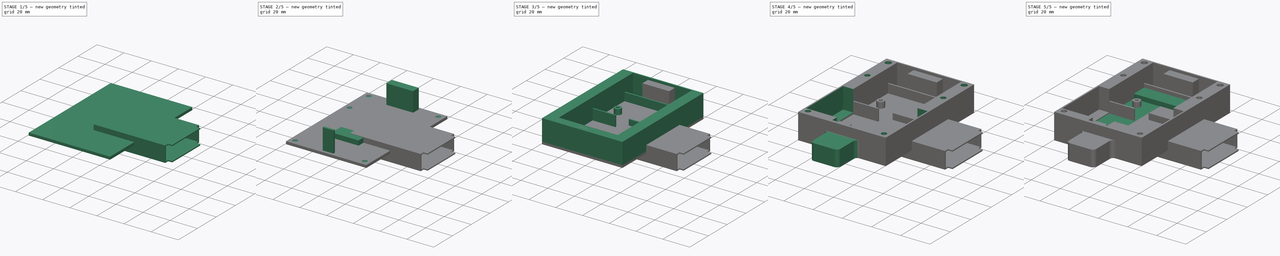
[diagram: build sequence overview — one tinted view per stage of 5, left to right]
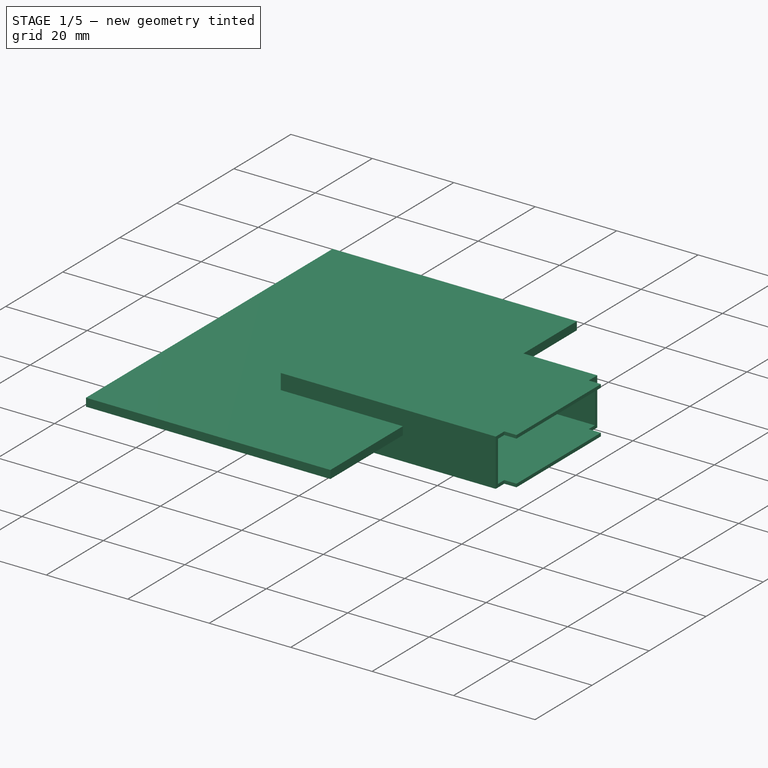
[diagram: stage 1 of 5 — iso view after this stage's code; geometry added in this stage tinted green]
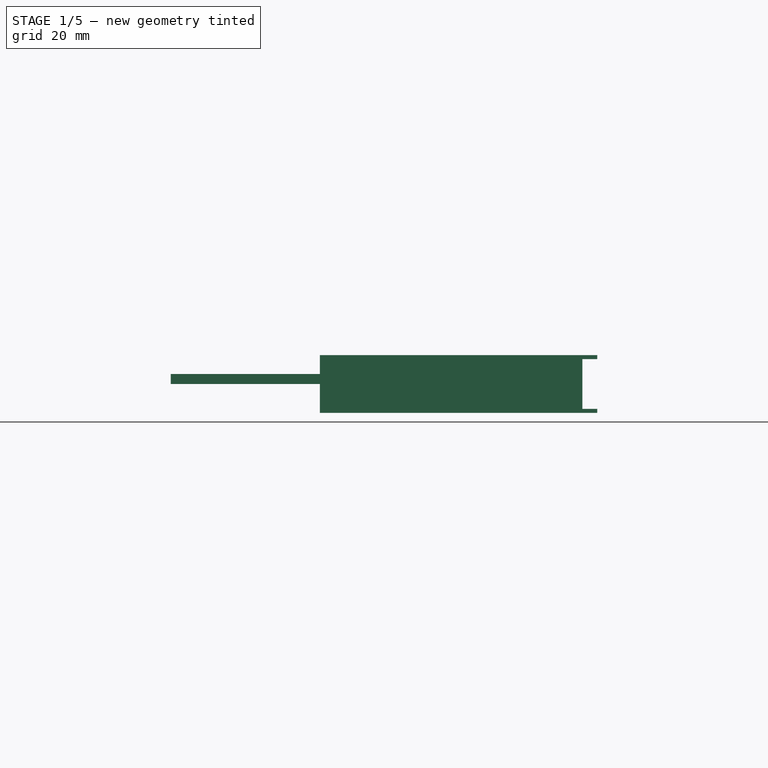
[diagram: stage 1 of 5 — front view after this stage's code; geometry added in this stage tinted green]
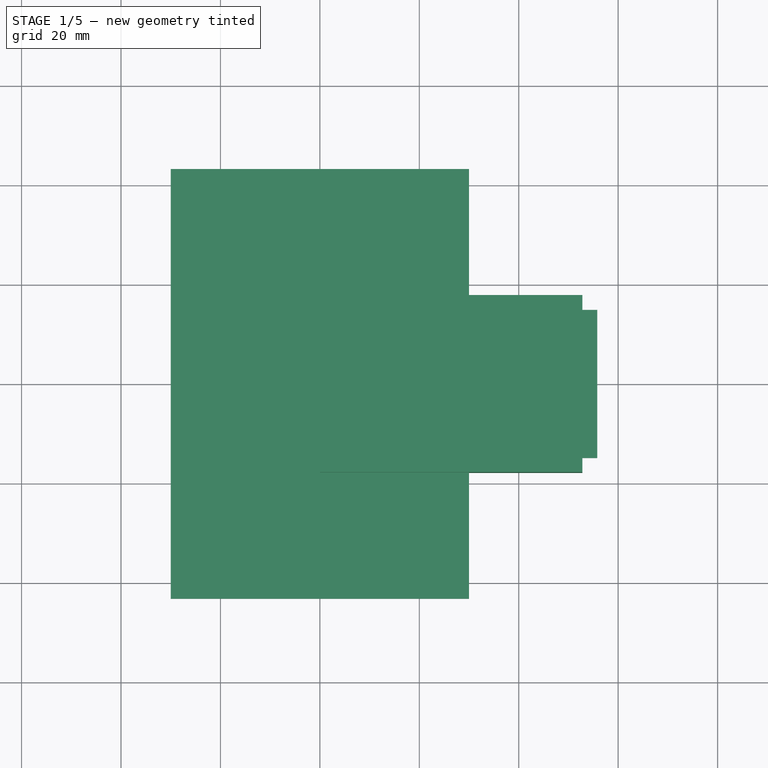
[diagram: stage 1 of 5 — top view after this stage's code; geometry added in this stage tinted green]
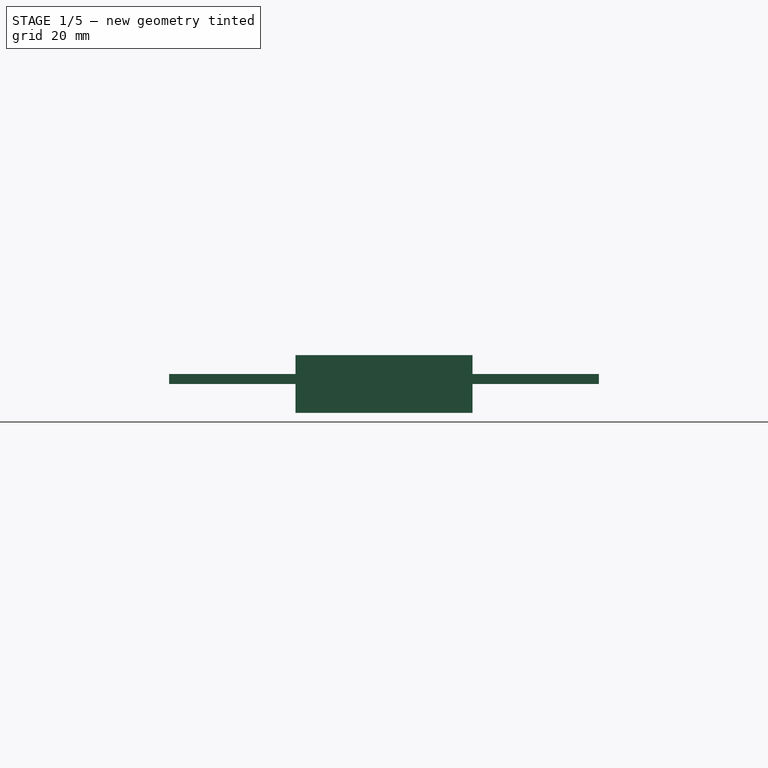
[diagram: stage 1 of 5 — right view after this stage's code; geometry added in this stage tinted green]
FCSTD DOCUMENT  (FreeCAD 0.21R33694 (Git))
Label: RAKTracker-V5
License: All rights reserved
LicenseURL: https://en.wikipedia.org/wiki/All_rights_reserved
objects: Sketcher::SketchObject×24, PartDesign::Pad×16, PartDesign::Pocket×7, PartDesign::Body×6, Spreadsheet::Sheet×1, PartDesign::Hole×1
note: 78 computed .brp shape members not serialized (recipe doc carries the construction recipe); baked Part::Feature solids carry a one-line shape summary decoded from their .brp

FEATURE [Sketcher::SketchObject] Sketch006  label="LidBaseSketch"
  FullyConstrained = true
  MapMode = 5
  Support = -> [XY_Plane001]
  expr: Constraints[10] = <<sheet>>.BoxWidth
  expr: Constraints[11] = <<sheet>>.BoxLength
  sketch-geometry (5):
    g0: LineSegment StartX=-30 StartY=-43.228 StartZ=0 EndX=-30 EndY=43.228 EndZ=0
    g1: LineSegment StartX=-30 StartY=43.228 StartZ=0 EndX=30 EndY=43.228 EndZ=0
    g2: LineSegment StartX=30 StartY=43.228 StartZ=0 EndX=30 EndY=-43.228 EndZ=0
    g3: LineSegment StartX=30 StartY=-43.228 StartZ=0 EndX=-30 EndY=-43.228 EndZ=0
    g4: GeomPoint X=0 Y=0 Z=0
  constraints (12):
    c: Coincident(g0,g1)
    c: Coincident(g1,g2)
    c: Coincident(g2,g3)
    c: Coincident(g3,g0)
    c: Horizontal(g1)
    c: Horizontal(g3)
    c: Vertical(g0)
    c: Vertical(g2)
    c: Symmetric(g1,g0,g4)
    c: Coincident(g4,g-1)
    c: DistanceX(g1,g1) = 60
    c: DistanceY(g2,g2) = 86.456
FEATURE [PartDesign::Pad] Pad004  label="LidBase"
  Direction = (0,0,1)
  Length = 2
  Length2 = 10
  Profile = -> Sketch006
  ReferenceAxis = -> Sketch006 [N_Axis]
  Type = 0
  expr: Length = <<sheet>>.LidHeight
FEATURE [PartDesign::Body] Body001  label="Lid"
  Group = -> [Sketch006,Pad004,Sketch010,Hole,Sketch020,Pad013,Sketch021,Pad014,Sketch022,Pad015]
  Origin = -> Origin001
  Placement = pos=(-4e-15,0,145.5) rot=(0,1,0;3.14159rad)
  Tip = -> Pad015
FEATURE [Sketcher::SketchObject] Sketch023  label="BatBoxBaseSketch"
  FullyConstrained = true
  MapMode = 5
  Placement = pos=(0,0,0) rot=(0.57735,0.57735,0.57735;2.0944rad)
  Support = -> [YZ_Plane004]
  expr: Constraints[10] = <<sheet>>.BatBoxWidth
  expr: Constraints[11] = <<sheet>>.BatBoxHeight
  sketch-geometry (5):
    g0: LineSegment StartX=-17.8 StartY=-5.8 StartZ=0 EndX=-17.8 EndY=5.8 EndZ=0
    g1: LineSegment StartX=-17.8 StartY=5.8 StartZ=0 EndX=17.8 EndY=5.8 EndZ=0
    g2: LineSegment StartX=17.8 StartY=5.8 StartZ=0 EndX=17.8 EndY=-5.8 EndZ=0
    g3: LineSegment StartX=17.8 StartY=-5.8 StartZ=0 EndX=-17.8 EndY=-5.8 EndZ=0
    g4: GeomPoint X=0 Y=0 Z=0
  constraints (12):
    c: Coincident(g0,g1)
    c: Coincident(g1,g2)
    c: Coincident(g2,g3)
    c: Coincident(g3,g0)
    c: Horizontal(g1)
    c: Horizontal(g3)
    c: Vertical(g0)
    c: Vertical(g2)
    c: Symmetric(g1,g0,g4)
    c: Coincident(g4,g-1)
    c: DistanceX(g1,g1) = 35.6
    c: DistanceY(g2,g2) = 11.6
FEATURE [PartDesign::Pad] Pad016  label="BatBoxBase"
  Direction = (1,-2e-16,3e-16)
  Length = 0.8
  Length2 = 10
  Placement = pos=(0,0,0) rot=(0.57735,0.57735,0.57735;2.0944rad)
  Profile = -> Sketch023
  ReferenceAxis = -> Sketch023 [N_Axis]
  Type = 0
  expr: Length = <<sheet>>.BatBoxWallThickness
FEATURE [Sketcher::SketchObject] Sketch024  label="BatBoxWallSketch"
  FullyConstrained = true
  MapMode = 5
  Placement = pos=(0,0,0) rot=(0.57735,0.57735,0.57735;2.0944rad)
  Support = -> [YZ_Plane004]
  expr: Constraints[10] = <<sheet>>.BatBoxHeight
  expr: Constraints[11] = <<sheet>>.BatBoxWidth
  expr: Constraints[22] = <<sheet>>.BatBoxWallThickness
  expr: Constraints[23] = <<sheet>>.BatBoxWallThickness
  sketch-geometry (10):
    g0: LineSegment StartX=-17.8 StartY=-5.8 StartZ=0 EndX=-17.8 EndY=5.8 EndZ=0
    g1: LineSegment StartX=-17.8 StartY=5.8 StartZ=0 EndX=17.8 EndY=5.8 EndZ=0
    g2: LineSegment StartX=17.8 StartY=5.8 StartZ=0 EndX=17.8 EndY=-5.8 EndZ=0
    g3: LineSegment StartX=17.8 StartY=-5.8 StartZ=0 EndX=-17.8 EndY=-5.8 EndZ=0
    g4: GeomPoint X=0 Y=0 Z=0
    g5: LineSegment StartX=-17 StartY=-5 StartZ=0 EndX=-17 EndY=5 EndZ=0
    g6: LineSegment StartX=-17 StartY=5 StartZ=0 EndX=17 EndY=5 EndZ=0
    g7: LineSegment StartX=17 StartY=5 StartZ=0 EndX=17 EndY=-5 EndZ=0
    g8: LineSegment StartX=17 StartY=-5 StartZ=0 EndX=-17 EndY=-5 EndZ=0
    g9: GeomPoint X=0 Y=0 Z=0
  constraints (24):
    c: Coincident(g0,g1)
    c: Coincident(g1,g2)
    c: Coincident(g2,g3)
    c: Coincident(g3,g0)
    c: Horizontal(g1)
    c: Horizontal(g3)
    c: Vertical(g0)
    c: Vertical(g2)
    c: Symmetric(g1,g0,g4)
    c: Coincident(g4,g-1)
    c: DistanceY(g2,g2) = 11.6
    c: DistanceX(g1,g1) = 35.6
    c: Coincident(g5,g6)
    c: Coincident(g6,g7)
    c: Coincident(g7,g8)
    c: Coincident(g8,g5)
    c: Horizontal(g6)
    c: Horizontal(g8)
    c: Vertical(g5)
    c: Vertical(g7)
    c: Symmetric(g6,g5,g9)
    c: Coincident(g9,g4)
    c: DistanceY(g5,g0) = 0.8
    c: DistanceX(g0,g5) = 0.8
FEATURE [PartDesign::Pad] Pad017  label="BatBoxWall"
  BaseFeature = -> Pad016
  Direction = (1,-2e-16,3e-16)
  Length = 55.8
  Length2 = 10
  Placement = pos=(0,0,0) rot=(0.57735,0.57735,0.57735;2.0944rad)
  Profile = -> Sketch024
  ReferenceAxis = -> Sketch024 [N_Axis]
  Type = 0
  expr: Length = <<sheet>>.BatBoxLength
FEATURE [Sketcher::SketchObject] Sketch025  label="BatBoxWiregapSketch"
  AttachmentOffset = pos=(0,0,55.8) rot=(0,0,1;0rad)
  FullyConstrained = true
  MapMode = 5
  Placement = pos=(55.8,-1.24e-14,1.24e-14) rot=(0.57735,0.57735,0.57735;2.0944rad)
  Support = -> [YZ_Plane004]
  expr: .AttachmentOffset.Base.z = <<sheet>>.BatBoxLength
  expr: Constraints[20] = <<sheet>>.BatBoxHeight
  expr: Constraints[21] = <<sheet>>.BatBoxWireGap
  expr: Constraints[24] = <<sheet>>.BatBoxWidth
  sketch-geometry (10):
    g0: LineSegment StartX=14.8 StartY=5.8 StartZ=0 EndX=14.8 EndY=-5.8 EndZ=0
    g1: LineSegment StartX=14.8 StartY=-5.8 StartZ=0 EndX=17.8 EndY=-5.8 EndZ=0
    g2: LineSegment StartX=17.8 StartY=-5.8 StartZ=0 EndX=17.8 EndY=5.8 EndZ=0
    g3: LineSegment StartX=17.8 StartY=5.8 StartZ=0 EndX=14.8 EndY=5.8 EndZ=0
    g4: GeomPoint X=16.3 Y=0 Z=0
    g5: LineSegment StartX=-17.8 StartY=5.8 StartZ=0 EndX=-17.8 EndY=-5.8 EndZ=0
    g6: LineSegment StartX=-17.8 StartY=-5.8 StartZ=0 EndX=-14.8 EndY=-5.8 EndZ=0
    g7: LineSegment StartX=-14.8 StartY=-5.8 StartZ=0 EndX=-14.8 EndY=5.8 EndZ=0
    g8: LineSegment StartX=-14.8 StartY=5.8 StartZ=0 EndX=-17.8 EndY=5.8 EndZ=0
    g9: GeomPoint X=-16.3 Y=0 Z=0
  constraints (25):
    c: Coincident(g0,g1)
    c: Coincident(g1,g2)
    c: Coincident(g2,g3)
    c: Coincident(g3,g0)
    c: Horizontal(g1)
    c: Horizontal(g3)
    c: Vertical(g0)
    c: Vertical(g2)
    c: Symmetric(g1,g0,g4)
    c: PointOnObject(g4,g-1)
    c: Coincident(g5,g6)
    c: Coincident(g6,g7)
    c: Coincident(g7,g8)
    c: Coincident(g8,g5)
    c: Horizontal(g6)
    c: Horizontal(g8)
    c: Vertical(g5)
    c: Vertical(g7)
    c: Symmetric(g6,g5,g9)
    c: PointOnObject(g9,g-1)
    c: DistanceY(g2,g2) = 11.6
    c: DistanceX(g3,g3) = 3
    c: Equal(g8,g3)
    c: Symmetric(g5,g1,g-2)
    c: DistanceX(g5,g1) = 35.6
FEATURE [PartDesign::Pocket] Pocket006  label="BatBoxWiregap"
  BaseFeature = -> Pad017
  Direction = (-1,2e-16,-3e-16)
  Length = 3
  Length2 = 35
  Placement = pos=(0,0,0) rot=(0.57735,0.57735,0.57735;2.0944rad)
  Profile = -> Sketch025
  ReferenceAxis = -> Sketch025 [N_Axis]
  Refine = true
  Type = 0
  expr: Length = <<sheet>>.BatBoxWireGap
FEATURE [PartDesign::Body] Body004  label="BatteryBox"
  Group = -> [Sketch023,Pad016,Sketch024,Pad017,Sketch025,Pocket006]
  Origin = -> Origin004
  Placement = pos=(-27.5,-18.5,23) rot=(0,0,1;0rad)
  Tip = -> Pocket006
FEATURE [Sketcher::SketchObject] Sketch026  label="SolarPanelHolderSealSketch"
  FullyConstrained = true
  MapMode = 5
  Support = -> [XY_Plane005]
  expr: Constraints[10] = <<sheet>>.BoxWidth
  expr: Constraints[20] = <<sheet>>.LidWireHoleLength
  expr: Constraints[21] = <<sheet>>.LidWireHoleWidth
  expr: Constraints[23] = <<sheet>>.HoleDiaInsert
  expr: Constraints[24] = <<sheet>>.BoxWallThicknessSides / 2
  expr: Constraints[25] = <<sheet>>.BoxWallThicknessSides / 2
  expr: Constraints[8] = <<sheet>>.StrapHolderDia
  sketch-geometry (10):
    g0: LineSegment StartX=-30 StartY=4 StartZ=0 EndX=30 EndY=4 EndZ=0
    g1: LineSegment StartX=30 StartY=4 StartZ=0 EndX=30 EndY=-4 EndZ=0
    g2: LineSegment StartX=30 StartY=-4 StartZ=0 EndX=-30 EndY=-4 EndZ=0
    g3: LineSegment StartX=-30 StartY=-4 StartZ=0 EndX=-30 EndY=4 EndZ=0
    g4: ArcOfCircle CenterX=-2 CenterY=0 CenterZ=0 NormalX=0 NormalY=0 NormalZ=1 AngleXU=0 Radius=2.25 StartAngle=1.5708 EndAngle=4.71239
    g5: ArcOfCircle CenterX=2 CenterY=0 CenterZ=0 NormalX=0 NormalY=0 NormalZ=1 AngleXU=0 Radius=2.25 StartAngle=4.71239 EndAngle=7.85398
    g6: LineSegment StartX=-2 StartY=-2.25 StartZ=0 EndX=2 EndY=-2.25 EndZ=0
    g7: LineSegment StartX=2 StartY=2.25 StartZ=0 EndX=-2 EndY=2.25 EndZ=0
    g8: Circle CenterX=-26 CenterY=0 CenterZ=0 NormalX=0 NormalY=0 NormalZ=1 AngleXU=0 Radius=2
    g9: Circle CenterX=26 CenterY=0 CenterZ=0 NormalX=0 NormalY=0 NormalZ=1 AngleXU=0 Radius=2
  constraints (26):
    c: Coincident(g0,g1)
    c: Coincident(g1,g2)
    c: Coincident(g2,g3)
    c: Coincident(g3,g0)
    c: Horizontal(g0)
    c: Horizontal(g2)
    c: Vertical(g1)
    c: Vertical(g3)
    c: DistanceY(g1,g1) = 8
    c: Symmetric(g0,g1,g-1)
    c: DistanceX(g0,g0) = 60
    c: Tangent(g4,g6) = -1.5708
    c: Tangent(g6,g5) = -1.5708
    c: Tangent(g5,g7) = -1.5708
    c: Tangent(g7,g4) = -1.5708
    c: Equal(g4,g5)
    c: PointOnObject(g4,g-1)
    c: PointOnObject(g8,g-1)
    c: PointOnObject(g9,g-1)
    c: Symmetric(g4,g5,g-1)
    c: DistanceX(g4,g5) = 4
    c: DistanceY(g5,g5) = 4.5
    c: Equal(g8,g9)
    c: Diameter(g8) = 4
    c: DistanceX(g0,g8) = 4
    c: DistanceX(g9,g0) = 4
FEATURE [PartDesign::Pad] Pad018  label="SolarPanelHolderSeal001"
  Direction = (0,0,1)
  Length = 1.2
  Length2 = 10
  Profile = -> Sketch026
  ReferenceAxis = -> Sketch026 [N_Axis]
  Type = 0
FEATURE [PartDesign::Body] Body005  label="SolarPanelHolderSeal"
  Group = -> [Sketch026,Pad018]
  Origin = -> Origin005
  Tip = -> Pad018
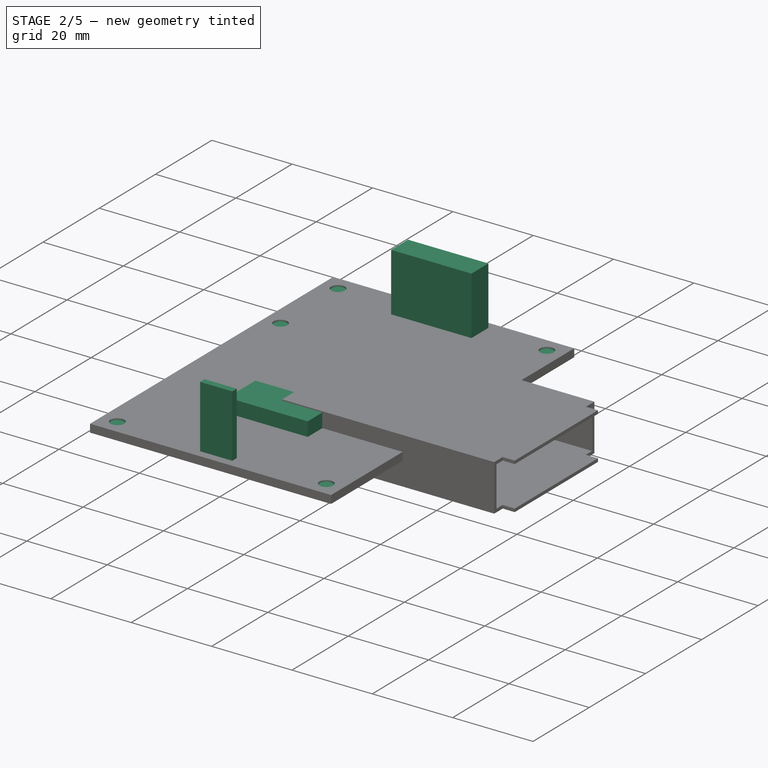
[diagram: stage 2 of 5 — iso view after this stage's code; geometry added in this stage tinted green]
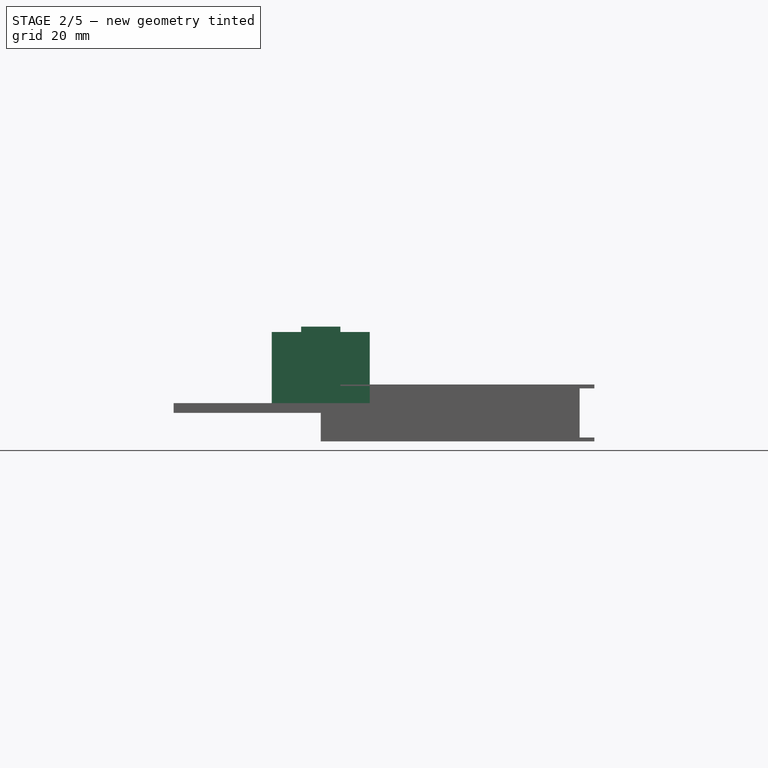
[diagram: stage 2 of 5 — front view after this stage's code; geometry added in this stage tinted green]
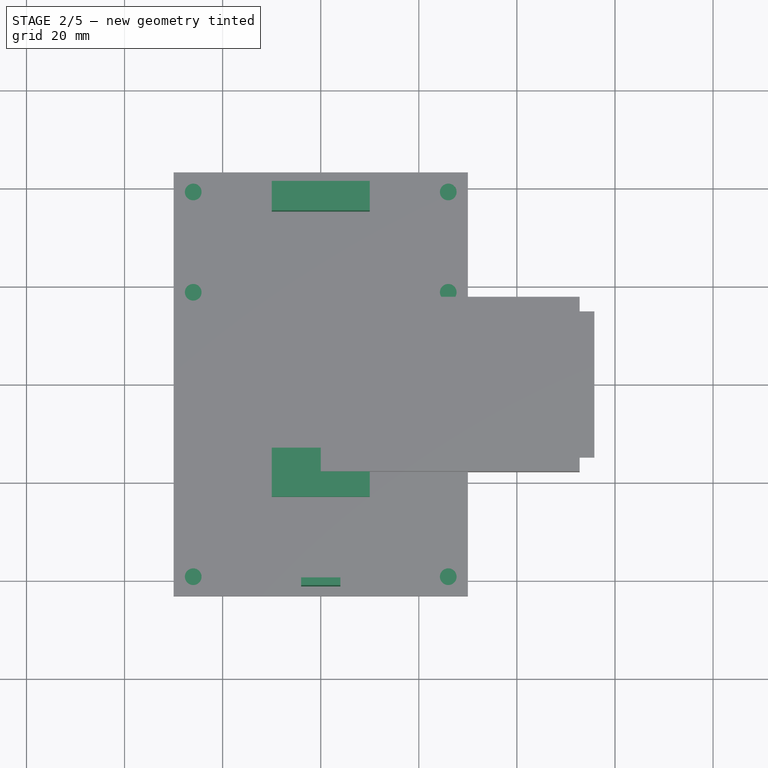
[diagram: stage 2 of 5 — top view after this stage's code; geometry added in this stage tinted green]
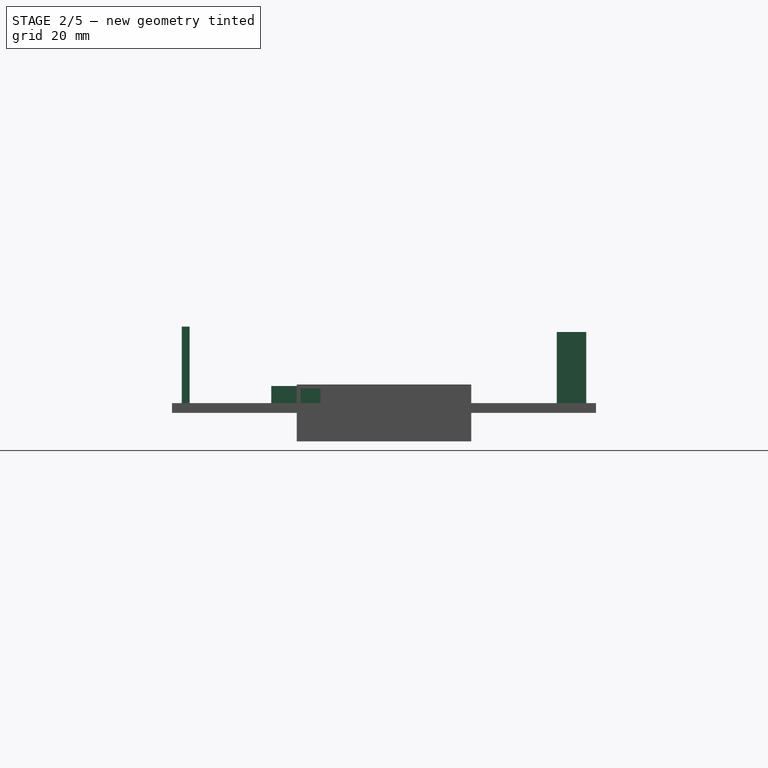
[diagram: stage 2 of 5 — right view after this stage's code; geometry added in this stage tinted green]
FEATURE [Spreadsheet::Sheet] Spreadsheet  label="sheet"
  cells = A1='Box dimensions; D1='Components; A2='Box Floor height; B2(BoxFloorHeight)==1.6 mm; D2='Solar Panel Length; E2(SolarPanelLength)==70.5 mm; A3='Box Length; B3(BoxLength)==B5 + E28 + B29 + E10 + B10 + B11 + B6; D3='Solar Panel Width; E3(SolarPanelWidth)==55.5 mm; A4='Box Width; B4(BoxWidth)==60 mm; D4='Solar Panel height; E4(SolarPanelHeight)==2.5 mm; A5='Box Wall Thickness Ant Side; B5(BoxWallthicknessAntSide)==1 mm; A6='Box Wall Thickness Bat Side; B6(BoxWallThicknessBatSide)==6.5 mm; D6='Battery Length; E6(BatLength)==55 mm; A7='Box Wall Thickness Sides; B7(BoxWallThicknessSides)==8 mm; D7='Battery Width; E7(BatWidth)==34 mm; A8='Box Height (total); B8(BoxHeight)==B2 + E13; D8='Battery Height; E8(BatHeight)==10 mm; A9='Box Screw Hole Diameter; B9(BoxScrewHoleDiameter)==6.5 mm; A10='Box Battery Protector Wall Thickness; B10(BoxBatWallThickness)==1 mm; D10='PCB Width Outer; E10(PCBWidthOuter)==33 mm; A11='Box Battery Space (width); B11(BoxBatWidth)==B18 * 1.01; D11='PCB Length; E11==36 mm; A12='Box Battery Protector Wall Height; B12(BoxBatWallHeight)==12 mm; D12='PCB Width; E12==30.5 mm; D13='PCB Height; E13==16 mm; D14='PCB Mount Height; E14(PCBMountHeight)==4.5 mm + B2; D15='PCB Mount From Side; E15(PCBMountFromSide)==6 mm; A16='Battery Box; D16='PCB Mount Hole Distance (side); E16(PCBMountHoleDistance)==22 mm; A17='Battery Box Length; B17(BatBoxLength)==E6 + B22; D17='PCB Mount Hole Distance (length to 3rd point); E17(PCBMountHoleDistanceLength)==31 mm; A18='Battery Box Width; B18(BatBoxWidth)==E7 + 2 * B22; D18='PCB Mount Dia (side); E18(PCBMountDia)==8 mm; A19='Battery Box Height; B19(BatBoxHeight)==E8 + 2 * B22; D19='PCB Mount Hole Dia (insert); E19(PCBMountHoleDia)==E36; D20='PCB Mount dia (3rd point); E20(PCBMountDia3rd)==5 mm; A21='Battery Box Wire Gap; B21(BatBoxWireGap)==3 mm; D21='PCB Mount Hole Diameter (3rd point); E21(PCBMountHoleDia3rd)==E38; A22='Battery Box Wall Thickness; B22(BatBoxWallThickness)==0.8 mm; D24='GPS Length and Width; E24(GPSLength)==16 mm; D25='GPS Height; E25(GPSHeight)==8 mm; D27='Antenna Length; E27(AntLength)==40 mm; D28='Antenne width; E28(AntWidth)==8 mm; A29='Antenna Wall Thickness; B29(AntWallthickness)==1 mm; D29='Antenna Height; E29(AntHeight)==1.5 mm; A30='Antenna Wall Height; B30(AntWallHeight)==8 mm; D30='Antenna Wire Diameter; E30(AntWireDia)==1.5 mm; A31='Antenna Brace width; B31(AntBraceWidth)==6 mm; D32='Strap WIdth; E32(StrapWidth)==50 mm; A33='Solar Panel Holder Thickness; B33(SPHThickness)==2.5 mm; D33='Strap Holder Dia; E33(StrapHolderDia)==8 mm; D34='Strap Holder hole distance; E34(StrapHoleDistance)==E32 + E33; A35='GPS Mount Wall thickness; B35(GPSMountWallThickness)==1.5 mm; A36='GPS Mount Radius; B36(GPSMountRadius)==2.5 mm; D36='Hole dia for insert; E36(HoleDiaInsert)==4 mm; D37='Hole dia for m3; E37==2.8 mm; A38='Solar panel wire slot length; B38(BoxSolarWireslotLength)==2.5 mm; D38='Hole dia for m2.5; E38==2.3 mm; D39='Hole dia for m3 though hole; E39(HoleDia3mThrough)==3.5 mm; D41='Insert Height; E41(InsertHeight)==5.6 mm; A43='Lid Height; B43(LidHeight)==2 mm; A44='Lid Battery Holder Height; B44(LidBatHolderBrace)==5.5 mm; C44='(Height of box + Lid height = total height) - (Antenna Wire Dia + Bat Box Height) - 1mm extra space; A45='Lid Wire hole width; B45(LidWireHoleWidth)==4.5 mm; A46='Lid wire hole length; B46(LidWireHoleLength)==4 mm
FEATURE [Sketcher::SketchObject] Sketch  label="BoxFloorSketch"
  FullyConstrained = true
  MapMode = 5
  Support = -> [XY_Plane]
  expr: Constraints[10] = <<sheet>>.BoxLength
  expr: Constraints[11] = <<sheet>>.BoxWidth
  sketch-geometry (5):
    g0: LineSegment StartX=-30 StartY=-43.228 StartZ=0 EndX=-30 EndY=43.228 EndZ=0
    g1: LineSegment StartX=-30 StartY=43.228 StartZ=0 EndX=30 EndY=43.228 EndZ=0
    g2: LineSegment StartX=30 StartY=43.228 StartZ=0 EndX=30 EndY=-43.228 EndZ=0
    g3: LineSegment StartX=30 StartY=-43.228 StartZ=0 EndX=-30 EndY=-43.228 EndZ=0
    g4: GeomPoint X=0 Y=0 Z=0
  constraints (12):
    c: Coincident(g0,g1)
    c: Coincident(g1,g2)
    c: Coincident(g2,g3)
    c: Coincident(g3,g0)
    c: Horizontal(g1)
    c: Horizontal(g3)
    c: Vertical(g0)
    c: Vertical(g2)
    c: Symmetric(g1,g0,g4)
    c: Coincident(g4,g-1)
    c: DistanceY(g2,g2) = 86.456
    c: DistanceX(g1,g1) = 60
FEATURE [PartDesign::Pad] Pad  label="BoxFloor"
  Direction = (0,0,1)
  Length = 1.6
  Length2 = 10
  Profile = -> Sketch
  ReferenceAxis = -> Sketch [N_Axis]
  Type = 0
  expr: Length = <<sheet>>.BoxFloorHeight
FEATURE [Sketcher::SketchObject] Sketch010  label="LidScrewHolesSketch"
  ExternalGeometry = -> [Sketch006]
  FullyConstrained = true
  MapMode = 5
  Support = -> [XY_Plane001]
  expr: Constraints[10] = <<sheet>>.BoxWallThicknessSides / 2
  expr: Constraints[11] = <<sheet>>.StrapHoleDistance
  expr: Constraints[17] = <<sheet>>.HoleDia3mThrough
  expr: Constraints[7] = <<sheet>>.BoxWallThicknessSides / 2
  expr: Constraints[8] = <<sheet>>.BoxWallThicknessSides / 2
  expr: Constraints[9] = <<sheet>>.BoxWallThicknessSides / 2
  sketch-geometry (6):
    g0: Circle CenterX=-26 CenterY=39.228 CenterZ=0 NormalX=0 NormalY=0 NormalZ=1 AngleXU=0 Radius=1.75
    g1: Circle CenterX=26 CenterY=39.228 CenterZ=0 NormalX=0 NormalY=0 NormalZ=1 AngleXU=0 Radius=1.75
    g2: Circle CenterX=26 CenterY=-39.228 CenterZ=0 NormalX=0 NormalY=0 NormalZ=1 AngleXU=0 Radius=1.75
    g3: Circle CenterX=-26 CenterY=-39.228 CenterZ=0 NormalX=0 NormalY=0 NormalZ=1 AngleXU=0 Radius=1.75
    g4: Circle CenterX=-26 CenterY=18.772 CenterZ=0 NormalX=0 NormalY=0 NormalZ=1 AngleXU=0 Radius=1.75
    g5: Circle CenterX=26 CenterY=18.772 CenterZ=0 NormalX=0 NormalY=0 NormalZ=1 AngleXU=0 Radius=1.75
  constraints (18):
    c: Horizontal(g0,g1)
    c: Horizontal(g5,g4)
    c: Horizontal(g3,g2)
    c: Vertical(g1,g5)
    c: Vertical(g5,g2)
    c: Vertical(g3,g4)
    c: Vertical(g4,g0)
    c: DistanceY(g0,g-3) = 4
    c: DistanceX(g-3,g0) = 4
    c: DistanceX(g2,g-4) = 4
    c: DistanceY(g-4,g2) = 4
    c: Distance(g5,g2) = 58
    c: Equal(g0,g1)
    c: Equal(g0,g5)
    c: Equal(g0,g4)
    c: Equal(g0,g3)
    c: Equal(g0,g2)
    c: Diameter(g0) = 3.5
FEATURE [PartDesign::Hole] Hole  label="LidScrewHoles"
  BaseFeature = -> Pad004
  CustomThreadClearance = 0
  Depth = 25
  DepthType = 0
  Diameter = 3.4
  DrillForDepth = false
  DrillPoint = 1
  DrillPointAngle = 118
  HoleCutCountersinkAngle = 90
  HoleCutCustomValues = false
  HoleCutDepth = 0
  HoleCutDiameter = 6.1
  HoleCutType = 2
  ModelThread = false
  Profile = -> Sketch010
  Reversed = true
  Tapered = false
  TaperedAngle = 90
  ThreadClass = 0
  ThreadDepth = 25
  ThreadDepthType = 0
  ThreadDirection = 0
  ThreadFit = 0
  ThreadSize = 9
  ThreadType = 2
  Threaded = false
  UseCustomThreadClearance = false
FEATURE [PartDesign::Body] Body  label="Box"
  Group = -> [Sketch,Pad,Sketch001,Pad001,Sketch003,Sketch004,Sketch005,Sketch008,Pad006,Pad007,Pad008,Pocket,Sketch009,Pocket001,Sketch015,Pocket004,Sketch016,Pad011,Sketch017,Pocket005]
  Origin = -> Origin
  Tip = -> Pocket005
FEATURE [Sketcher::SketchObject] Sketch020  label="LidAntBraceSketch"
  ExternalGeometry = -> [Sketch006]
  FullyConstrained = true
  MapMode = 5
  Support = -> [XY_Plane001]
  expr: Constraints[10] = <<sheet>>.BoxWallthicknessAntSide + 1 mm
  expr: Constraints[7] = Spreadsheet.AntBraceWidth
  sketch-geometry (4):
    g0: LineSegment StartX=-10 StartY=41.228 StartZ=0 EndX=10 EndY=41.228 EndZ=0
    g1: LineSegment StartX=10 StartY=41.228 StartZ=0 EndX=10 EndY=35.228 EndZ=0
    g2: LineSegment StartX=10 StartY=35.228 StartZ=0 EndX=-10 EndY=35.228 EndZ=0
    g3: LineSegment StartX=-10 StartY=35.228 StartZ=0 EndX=-10 EndY=41.228 EndZ=0
  constraints (11):
    c: Coincident(g0,g1)
    c: Coincident(g1,g2)
    c: Coincident(g2,g3)
    c: Coincident(g3,g0)
    c: Horizontal(g0)
    c: Vertical(g1)
    c: Vertical(g3)
    c: DistanceY(g1,g1) = 6
    c: DistanceX(g0,g0) = 20
    c: Symmetric(g1,g2,g-2)
    c: DistanceY(g0,g-3) = 2
FEATURE [PartDesign::Pad] Pad013  label="LidAntBrace"
  BaseFeature = -> Hole
  Direction = (0,0,1)
  Length = 16.5
  Length2 = 10
  Profile = -> Sketch020
  ReferenceAxis = -> Sketch020 [N_Axis]
  Type = 0
  expr: Length = <<sheet>>.BoxHeight - <<sheet>>.BoxFloorHeight + <<sheet>>.LidHeight - <<sheet>>.AntHeight
FEATURE [Sketcher::SketchObject] Sketch021  label="LidBatBoxBraceSketch"
  FullyConstrained = true
  MapMode = 5
  Support = -> [XY_Plane001]
  expr: Constraints[12] = <<sheet>>.BoxBatWidth / 2
  sketch-geometry (5):
    g0: LineSegment StartX=-10 StartY=-12.978 StartZ=0 EndX=-10 EndY=-22.978 EndZ=0
    g1: LineSegment StartX=-10 StartY=-22.978 StartZ=0 EndX=10 EndY=-22.978 EndZ=0
    g2: LineSegment StartX=10 StartY=-22.978 StartZ=0 EndX=10 EndY=-12.978 EndZ=0
    g3: LineSegment StartX=10 StartY=-12.978 StartZ=0 EndX=-10 EndY=-12.978 EndZ=0
    g4: GeomPoint X=0 Y=-17.978 Z=0
  constraints (13):
    c: Coincident(g0,g1)
    c: Coincident(g1,g2)
    c: Coincident(g2,g3)
    c: Coincident(g3,g0)
    c: Horizontal(g1)
    c: Horizontal(g3)
    c: Vertical(g0)
    c: Vertical(g2)
    c: Symmetric(g1,g0,g4)
    c: PointOnObject(g4,g-2)
    c: DistanceX(g3,g3) = 20
    c: DistanceY(g2,g2) = 10
    c: Distance(g-1,g4) = 17.978
FEATURE [PartDesign::Pad] Pad014  label="LidBatBoxBrace"
  BaseFeature = -> Pad013
  Direction = (0,0,1)
  Length = 5.5
  Length2 = 10
  Profile = -> Sketch021
  ReferenceAxis = -> Sketch021 [N_Axis]
  Type = 0
  expr: Length = <<sheet>>.LidBatHolderBrace
FEATURE [Sketcher::SketchObject] Sketch022  label="LidGPSHolderSketch"
  ExternalGeometry = -> [Sketch006]
  FullyConstrained = true
  MapMode = 5
  Support = -> [XY_Plane001]
  expr: Constraints[10] = <<sheet>>.BoxWallThicknessSides / 4
  expr: Constraints[12] = <<sheet>>.GPSLength / 2
  sketch-geometry (5):
    g0: LineSegment StartX=-4 StartY=-39.628 StartZ=0 EndX=-4 EndY=-41.228 EndZ=0
    g1: LineSegment StartX=-4 StartY=-41.228 StartZ=0 EndX=4 EndY=-41.228 EndZ=0
    g2: LineSegment StartX=4 StartY=-41.228 StartZ=0 EndX=4 EndY=-39.628 EndZ=0
    g3: LineSegment StartX=4 StartY=-39.628 StartZ=0 EndX=-4 EndY=-39.628 EndZ=0
    g4: GeomPoint X=0 Y=-40.428 Z=0
  constraints (13):
    c: Coincident(g0,g1)
    c: Coincident(g1,g2)
    c: Coincident(g2,g3)
    c: Coincident(g3,g0)
    c: Horizontal(g1)
    c: Horizontal(g3)
    c: Vertical(g0)
    c: Vertical(g2)
    c: Symmetric(g1,g0,g4)
    c: PointOnObject(g4,g-2)
    c: DistanceY(g-3,g1) = 2
    c: DistanceY(g2,g2) = 1.6
    c: DistanceX(g3,g3) = 8
FEATURE [PartDesign::Pad] Pad015  label="LidGPSHolder"
  BaseFeature = -> Pad014
  Direction = (0,0,1)
  Length = 17.6
  Length2 = 10
  Profile = -> Sketch022
  ReferenceAxis = -> Sketch022 [N_Axis]
  Type = 0
  expr: Length = <<sheet>>.BoxHeight
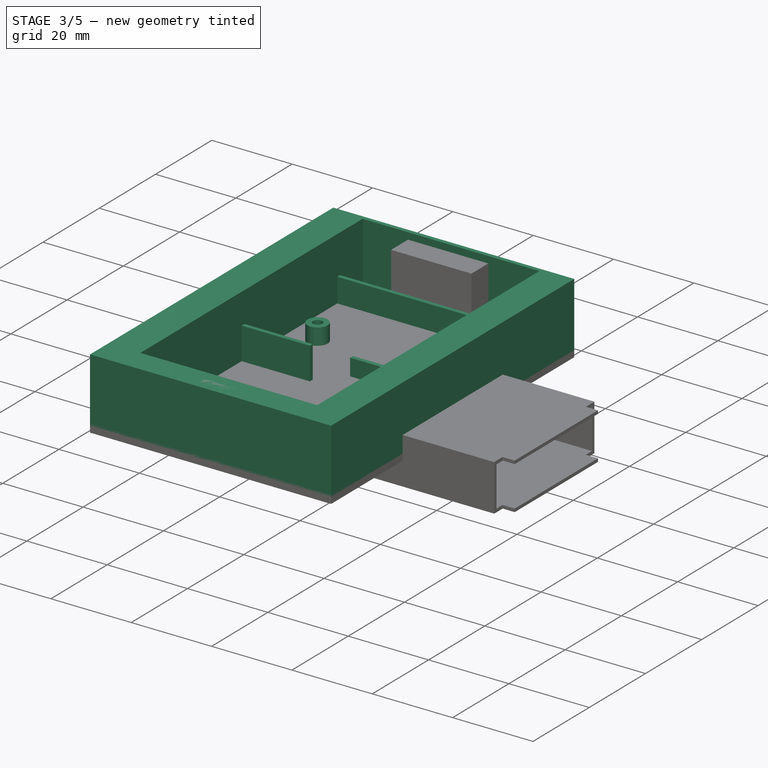
[diagram: stage 3 of 5 — iso view after this stage's code; geometry added in this stage tinted green]
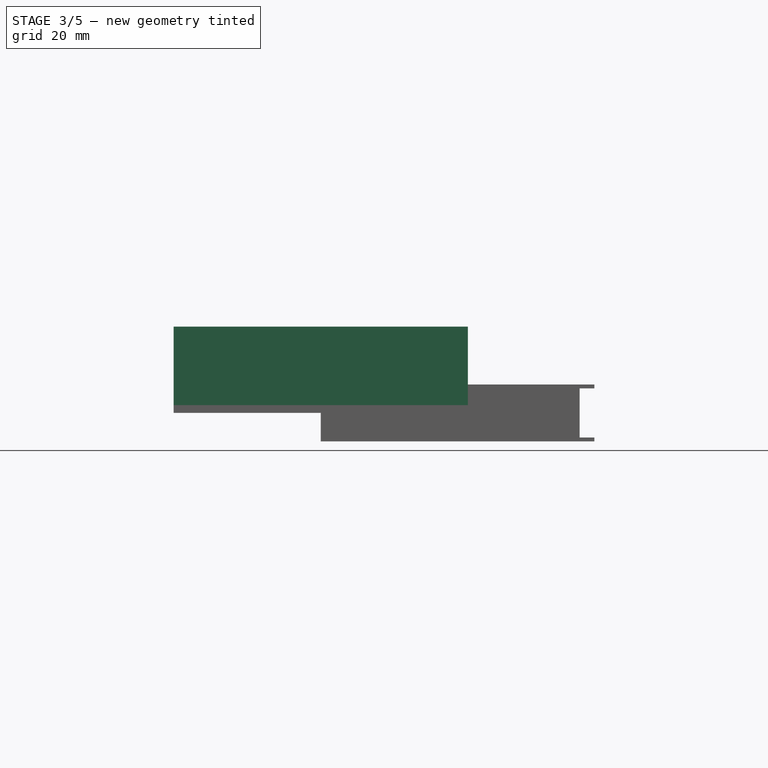
[diagram: stage 3 of 5 — front view after this stage's code; geometry added in this stage tinted green]
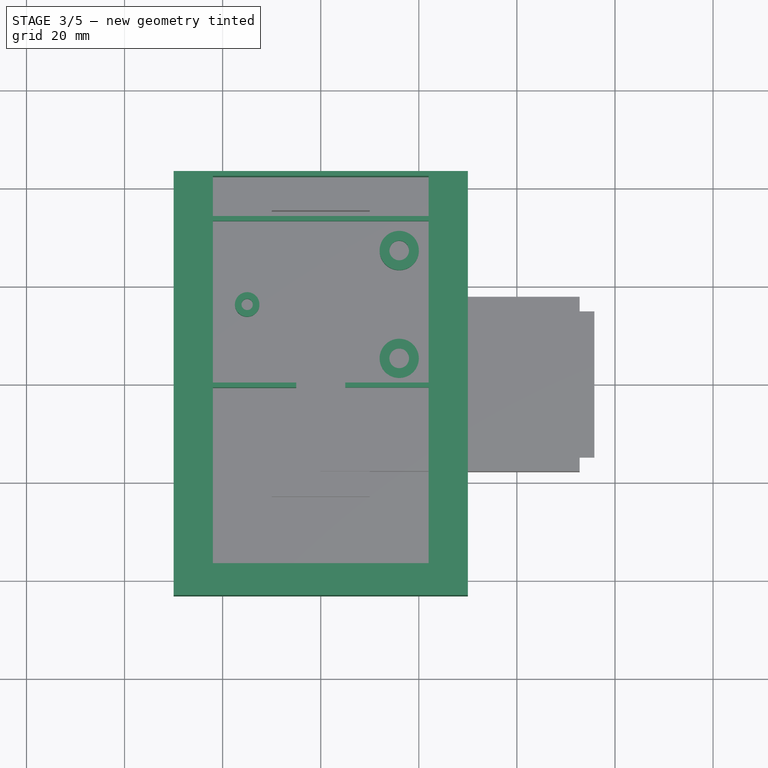
[diagram: stage 3 of 5 — top view after this stage's code; geometry added in this stage tinted green]
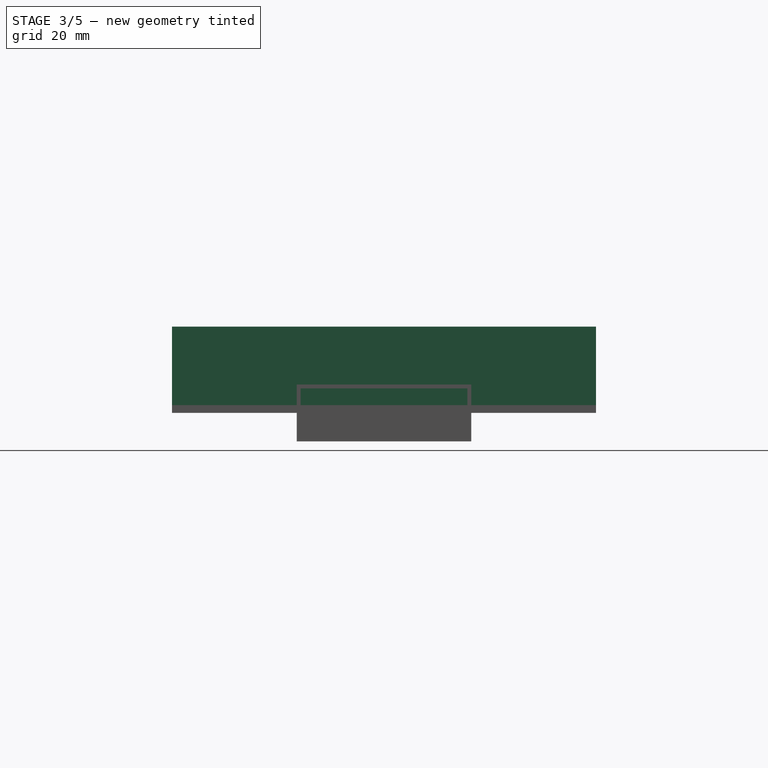
[diagram: stage 3 of 5 — right view after this stage's code; geometry added in this stage tinted green]
FEATURE [Sketcher::SketchObject] Sketch001  label="BoxOuterWallSketch"
  FullyConstrained = true
  MapMode = 5
  Support = -> [XY_Plane]
  expr: Constraints[18] = <<sheet>>.BoxWidth
  expr: Constraints[19] = <<sheet>>.BoxLength
  expr: Constraints[20] = Spreadsheet.BoxWallThicknessSides
  expr: Constraints[21] = Spreadsheet.BoxWallthicknessAntSide
  expr: Constraints[22] = <<sheet>>.BoxWallThicknessBatSide
  sketch-geometry (10):
    g0: LineSegment StartX=-30 StartY=-43.228 StartZ=0 EndX=-30 EndY=43.228 EndZ=0
    g1: LineSegment StartX=-30 StartY=43.228 StartZ=0 EndX=30 EndY=43.228 EndZ=0
    g2: LineSegment StartX=30 StartY=43.228 StartZ=0 EndX=30 EndY=-43.228 EndZ=0
    g3: LineSegment StartX=30 StartY=-43.228 StartZ=0 EndX=-30 EndY=-43.228 EndZ=0
    g4: GeomPoint X=0 Y=0 Z=0
    g5: LineSegment StartX=-22 StartY=-36.728 StartZ=0 EndX=-22 EndY=42.228 EndZ=0
    g6: LineSegment StartX=-22 StartY=42.228 StartZ=0 EndX=22 EndY=42.228 EndZ=0
    g7: LineSegment StartX=22 StartY=42.228 StartZ=0 EndX=22 EndY=-36.728 EndZ=0
    g8: LineSegment StartX=22 StartY=-36.728 StartZ=0 EndX=-22 EndY=-36.728 EndZ=0
    g9: GeomPoint X=0 Y=0 Z=0
  constraints (24):
    c: Coincident(g0,g1)
    c: Coincident(g1,g2)
    c: Coincident(g2,g3)
    c: Coincident(g3,g0)
    c: Horizontal(g1)
    c: Horizontal(g3)
    c: Vertical(g0)
    c: Vertical(g2)
    c: Symmetric(g1,g0,g4)
    c: Coincident(g4,g-1)
    c: Coincident(g5,g6)
    c: Coincident(g6,g7)
    c: Coincident(g7,g8)
    c: Coincident(g8,g5)
    c: Horizontal(g6)
    c: Vertical(g5)
    c: Vertical(g7)
    c: Coincident(g9,g4)
    c: DistanceX(g1,g1) = 60
    c: DistanceY(g2,g2) = 86.456
    c: DistanceX(g0,g5) = 8
    c: DistanceY(g5,g0) = 1
    c: DistanceY(g0,g5) = 6.5
    c: Symmetric(g7,g5,g-2)
FEATURE [PartDesign::Pad] Pad001  label="BoxOuterWall"
  BaseFeature = -> Pad
  Direction = (0,0,1)
  Length = 17.6
  Length2 = 10
  Profile = -> Sketch001
  ReferenceAxis = -> Sketch001 [N_Axis]
  Type = 0
  expr: Length = Spreadsheet.BoxHeight
FEATURE [PartDesign::Body] Body002  label="SolarPanel"
  Group = -> [Sketch007,Pad005]
  Origin = -> Origin002
  Placement = pos=(0,-4.5,-93) rot=(0,0,1;0rad)
  Tip = -> Pad005
FEATURE [Sketcher::SketchObject] Sketch008  label="BoxAntWallSketch"
  ExternalGeometry = -> [Sketch001]
  FullyConstrained = true
  MapMode = 5
  Support = -> [XY_Plane]
  expr: Constraints[10] = <<sheet>>.AntWallthickness
  expr: Constraints[11] = <<sheet>>.AntWidth
  sketch-geometry (4):
    g0: LineSegment StartX=-22 StartY=34.228 StartZ=0 EndX=22 EndY=34.228 EndZ=0
    g1: LineSegment StartX=22 StartY=34.228 StartZ=0 EndX=22 EndY=33.228 EndZ=0
    g2: LineSegment StartX=22 StartY=33.228 StartZ=0 EndX=-22 EndY=33.228 EndZ=0
    g3: LineSegment StartX=-22 StartY=33.228 StartZ=0 EndX=-22 EndY=34.228 EndZ=0
  constraints (12):
    c: Coincident(g0,g1)
    c: Coincident(g1,g2)
    c: Coincident(g2,g3)
    c: Coincident(g3,g0)
    c: Horizontal(g0)
    c: Horizontal(g2)
    c: Vertical(g1)
    c: Vertical(g3)
    c: PointOnObject(g0,g-4)
    c: PointOnObject(g1,g-5)
    c: DistanceY(g1,g1) = 1
    c: DistanceY(g0,g-5) = 8
FEATURE [Sketcher::SketchObject] Sketch003  label="BoxPCBMountSketch"
  ExternalGeometry = -> [Sketch008]
  FullyConstrained = true
  MapMode = 5
  Support = -> [XY_Plane]
  expr: Constraints[12] = <<sheet>>.PCBMountHoleDia
  expr: Constraints[14] = <<sheet>>.PCBMountHoleDia3rd
  expr: Constraints[15] = <<sheet>>.PCBMountFromSide
  expr: Constraints[16] = <<sheet>>.PCBMountFromSide
  expr: Constraints[1] = <<sheet>>.PCBMountDia
  expr: Constraints[3] = <<sheet>>.PCBMountHoleDistance
  expr: Constraints[6] = <<sheet>>.PCBMountHoleDistanceLength
  expr: Constraints[8] = Spreadsheet.PCBMountDia3rd
  sketch-geometry (7):
    g0: Circle CenterX=16 CenterY=27.228 CenterZ=0 NormalX=0 NormalY=0 NormalZ=1 AngleXU=0 Radius=4
    g1: Circle CenterX=16 CenterY=5.228 CenterZ=0 NormalX=0 NormalY=0 NormalZ=1 AngleXU=0 Radius=4
    g2: Circle CenterX=-15 CenterY=16.228 CenterZ=0 NormalX=0 NormalY=0 NormalZ=1 AngleXU=0 Radius=2.5
    g3: LineSegment StartX=-15 StartY=16.228 StartZ=0 EndX=16 EndY=16.228 EndZ=0
    g4: Circle CenterX=16 CenterY=27.228 CenterZ=0 NormalX=0 NormalY=0 NormalZ=1 AngleXU=0 Radius=2
    g5: Circle CenterX=16 CenterY=5.228 CenterZ=0 NormalX=0 NormalY=0 NormalZ=1 AngleXU=0 Radius=2
    g6: Circle CenterX=-15 CenterY=16.228 CenterZ=0 NormalX=0 NormalY=0 NormalZ=1 AngleXU=0 Radius=1.15
  constraints (17):
    c: Equal(g0,g1)
    c: Diameter(g0) = 8
    c: Vertical(g0,g1)
    c: Distance(g0,g1) = 22
    c: Coincident(g3,g2)
    c: Horizontal(g3)
    c: DistanceX(g3,g3) = 31
    c: Symmetric(g0,g1,g3)
    c: Diameter(g2) = 5
    c: Coincident(g4,g0)
    c: Coincident(g5,g1)
    c: Equal(g4,g5)
    c: Diameter(g4) = 4
    c: Coincident(g6,g2)
    c: Diameter(g6) = 2.3
    c: DistanceY(g0,g-3) = 6
    c: DistanceX(g0,g-3) = 6
FEATURE [Sketcher::SketchObject] Sketch004  label="BoxBatWallSketch"
  ExternalGeometry = -> [Sketch001,Sketch008]
  FullyConstrained = true
  MapMode = 5
  Support = -> [XY_Plane]
  expr: Constraints[7] = <<sheet>>.BoxBatWallThickness
  expr: Constraints[9] = <<sheet>>.PCBWidthOuter
  sketch-geometry (8):
    g0: LineSegment StartX=-22 StartY=0.228 StartZ=0 EndX=-22 EndY=-0.772 EndZ=0
    g1: LineSegment StartX=22 StartY=-0.772 StartZ=0 EndX=22 EndY=0.228 EndZ=0
    g2: LineSegment StartX=-5 StartY=0.228 StartZ=0 EndX=-22 EndY=0.228 EndZ=0
    g3: LineSegment StartX=-22 StartY=-0.772 StartZ=0 EndX=-5 EndY=-0.772 EndZ=0
    g4: LineSegment StartX=22 StartY=0.228 StartZ=0 EndX=5 EndY=0.228 EndZ=0
    g5: LineSegment StartX=5 StartY=-0.772 StartZ=0 EndX=22 EndY=-0.772 EndZ=0
    g6: LineSegment StartX=-5 StartY=0.228 StartZ=0 EndX=-5 EndY=-0.772 EndZ=0
    g7: LineSegment StartX=5 StartY=0.228 StartZ=0 EndX=5 EndY=-0.772 EndZ=0
  constraints (23):
    c: Coincident(g2,g0)
    c: Coincident(g0,g3)
    c: Coincident(g5,g1)
    c: Coincident(g1,g4)
    c: Vertical(g0)
    c: Vertical(g1)
    c: PointOnObject(g4,g-5)
    c: DistanceY(g0,g0) = 1
    c: PointOnObject(g2,g-4)
    c: DistanceY(g4,g-6) = 33
    c: Horizontal(g2)
    c: Horizontal(g3)
    c: Horizontal(g4)
    c: Horizontal(g5)
    c: Coincident(g6,g2)
    c: Coincident(g6,g3)
    c: Coincident(g7,g4)
    c: Coincident(g7,g5)
    c: Vertical(g6)
    c: Vertical(g7)
    c: Distance(g2,g4) = 10
    c: Horizontal(g2,g4)
    c: Symmetric(g3,g5,g-2)
FEATURE [Sketcher::SketchObject] Sketch005  label="BoxBatSpaceSketch"
  ExternalGeometry = -> [Sketch001,Sketch008]
  FullyConstrained = true
  MapMode = 5
  Support = -> [XY_Plane]
  expr: Constraints[10] = <<sheet>>.BoxBatWidth
  expr: Constraints[11] = <<sheet>>.PCBWidthOuter + <<sheet>>.BoxBatWallThickness
  expr: Constraints[8] = Spreadsheet.BoxWallthicknessAntSide
  expr: Constraints[9] = Spreadsheet.BoxWallthicknessAntSide
  sketch-geometry (4):
    g0: LineSegment StartX=-29 StartY=-0.772 StartZ=0 EndX=29 EndY=-0.772 EndZ=0
    g1: LineSegment StartX=29 StartY=-0.772 StartZ=0 EndX=29 EndY=-36.728 EndZ=0
    g2: LineSegment StartX=29 StartY=-36.728 StartZ=0 EndX=-29 EndY=-36.728 EndZ=0
    g3: LineSegment StartX=-29 StartY=-36.728 StartZ=0 EndX=-29 EndY=-0.772 EndZ=0
  constraints (12):
    c: Coincident(g0,g1)
    c: Coincident(g1,g2)
    c: Coincident(g2,g3)
    c: Coincident(g3,g0)
    c: Horizontal(g0)
    c: Horizontal(g2)
    c: Vertical(g1)
    c: Vertical(g3)
    c: DistanceX(g-4,g0) = 1
    c: DistanceX(g0,g-3) = 1
    c: DistanceY(g1,g1) = 35.956
    c: DistanceY(g0,g-5) = 34
FEATURE [PartDesign::Pad] Pad006  label="BoxAntWall"
  BaseFeature = -> Pad001
  Direction = (0,0,1)
  Length = 8
  Length2 = 10
  Profile = -> Sketch008
  ReferenceAxis = -> Sketch008 [N_Axis]
  Type = 0
  expr: Length = <<sheet>>.AntWallHeight
FEATURE [PartDesign::Pad] Pad007  label="BoxPCBMount"
  BaseFeature = -> Pad006
  Direction = (0,0,1)
  Length = 6.1
  Length2 = 10
  Profile = -> Sketch003
  ReferenceAxis = -> Sketch003 [N_Axis]
  Type = 0
  expr: Length = <<sheet>>.PCBMountHeight
FEATURE [PartDesign::Pad] Pad008  label="BoxBatWall"
  BaseFeature = -> Pad007
  Direction = (0,0,1)
  Length = 10
  Length2 = 10
  Profile = -> Sketch004
  ReferenceAxis = -> Sketch004 [N_Axis]
  Type = 0
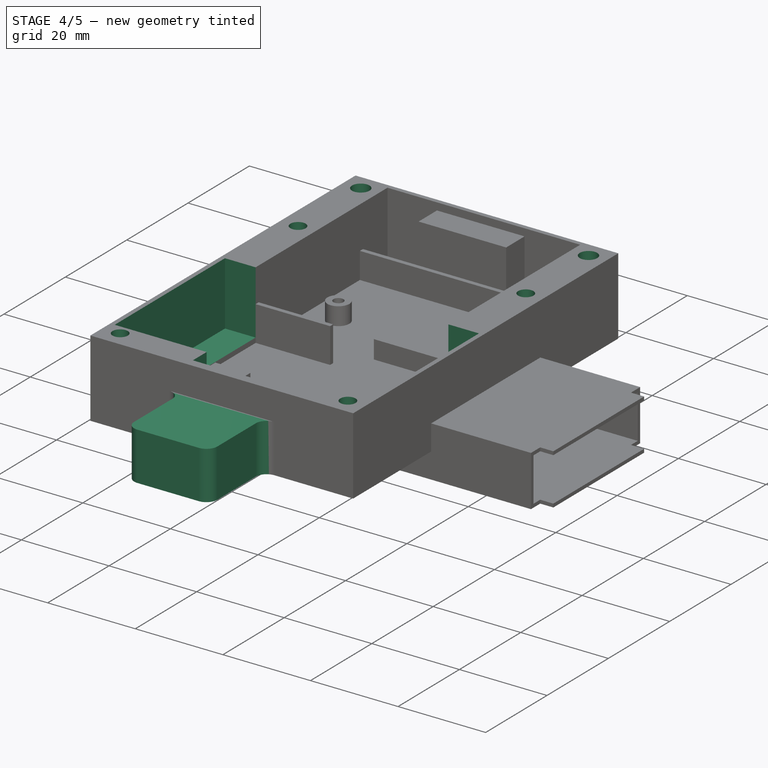
[diagram: stage 4 of 5 — iso view after this stage's code; geometry added in this stage tinted green]
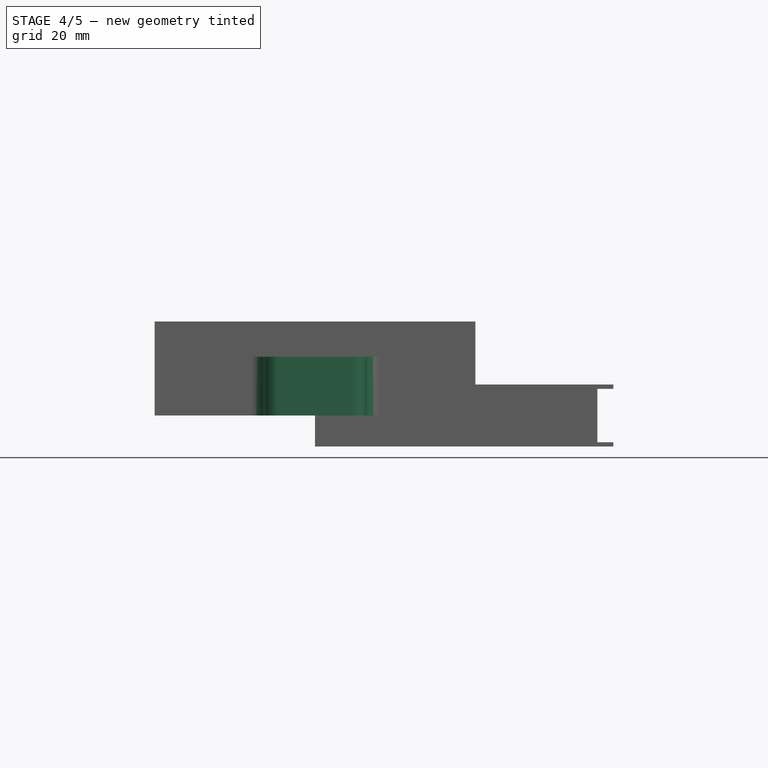
[diagram: stage 4 of 5 — front view after this stage's code; geometry added in this stage tinted green]
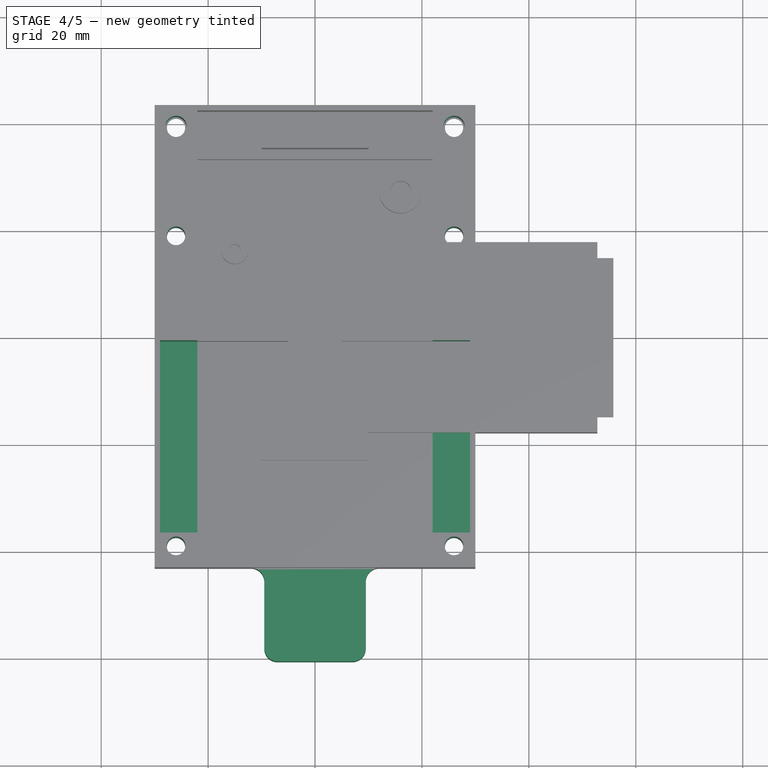
[diagram: stage 4 of 5 — top view after this stage's code; geometry added in this stage tinted green]
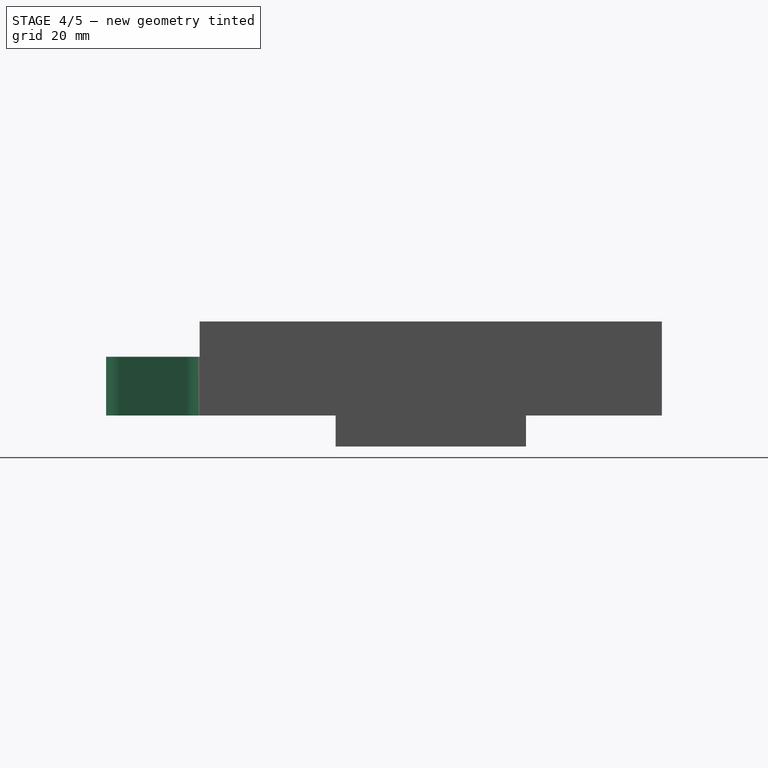
[diagram: stage 4 of 5 — right view after this stage's code; geometry added in this stage tinted green]
FEATURE [PartDesign::Pocket] Pocket  label="BoxBatSpace"
  BaseFeature = -> Pad008
  Direction = (0,0,-1)
  Length = 17.6
  Length2 = -3.1
  Profile = -> Sketch005
  ReferenceAxis = -> Sketch005 [N_Axis]
  Reversed = true
  Type = 4
  expr: Length = <<sheet>>.BoxHeight
  expr: Length2 = (<<sheet>>.BoxFloorHeight + <<sheet>>.AntWireDia) * -1
FEATURE [Sketcher::SketchObject] Sketch009  label="BoxScrewHolesSketch"
  FullyConstrained = true
  MapMode = 5
  Support = -> [XY_Plane]
  expr: Constraints[10] = <<sheet>>.BoxWidth
  expr: Constraints[11] = <<sheet>>.BoxLength
  expr: Constraints[19] = <<sheet>>.BoxWallThicknessSides / 2
  expr: Constraints[20] = <<sheet>>.BoxWallThicknessSides / 2
  expr: Constraints[24] = Spreadsheet.HoleDia3mThrough
  expr: Constraints[25] = <<sheet>>.BoxWallThicknessSides / 2
  expr: Constraints[27] = <<sheet>>.HoleDiaInsert
  expr: Constraints[28] = <<sheet>>.BoxWallThicknessSides / 2
  expr: Constraints[29] = <<sheet>>.StrapHoleDistance
  sketch-geometry (11):
    g0: LineSegment StartX=30 StartY=-43.228 StartZ=0 EndX=30 EndY=43.228 EndZ=0
    g1: LineSegment StartX=30 StartY=43.228 StartZ=0 EndX=-30 EndY=43.228 EndZ=0
    g2: LineSegment StartX=-30 StartY=43.228 StartZ=0 EndX=-30 EndY=-43.228 EndZ=0
    g3: LineSegment StartX=-30 StartY=-43.228 StartZ=0 EndX=30 EndY=-43.228 EndZ=0
    g4: GeomPoint X=0 Y=0 Z=0
    g5: Circle CenterX=-26 CenterY=39.228 CenterZ=0 NormalX=0 NormalY=0 NormalZ=1 AngleXU=0 Radius=2
    g6: Circle CenterX=-26 CenterY=18.772 CenterZ=0 NormalX=0 NormalY=0 NormalZ=1 AngleXU=0 Radius=1.75
    g7: Circle CenterX=-26 CenterY=-39.228 CenterZ=0 NormalX=0 NormalY=0 NormalZ=1 AngleXU=0 Radius=1.75
    g8: Circle CenterX=26 CenterY=-39.228 CenterZ=0 NormalX=0 NormalY=0 NormalZ=1 AngleXU=0 Radius=1.75
    g9: Circle CenterX=26 CenterY=18.772 CenterZ=0 NormalX=0 NormalY=0 NormalZ=1 AngleXU=0 Radius=1.75
    g10: Circle CenterX=26 CenterY=39.228 CenterZ=0 NormalX=0 NormalY=0 NormalZ=1 AngleXU=0 Radius=2
  constraints (30):
    c: Coincident(g0,g1)
    c: Coincident(g1,g2)
    c: Coincident(g2,g3)
    c: Coincident(g3,g0)
    c: Horizontal(g1)
    c: Horizontal(g3)
    c: Vertical(g0)
    c: Vertical(g2)
    c: Symmetric(g1,g0,g4)
    c: Coincident(g4,g-1)
    c: DistanceX(g1,g1) = 60
    c: DistanceY(g0,g0) = 86.456
    c: Horizontal(g5,g10)
    c: Horizontal(g6,g9)
    c: Horizontal(g8,g7)
    c: Vertical(g5,g6)
    c: Vertical(g6,g7)
    c: Vertical(g10,g9)
    c: Vertical(g9,g8)
    c: DistanceX(g1,g5) = 4
    c: DistanceX(g8,g0) = 4
    c: Equal(g6,g7)
    c: Equal(g6,g8)
    c: Equal(g6,g9)
    c: Diameter(g6) = 3.5
    c: DistanceY(g0,g8) = 4
    c: Equal(g5,g10)
    c: Diameter(g5) = 4
    c: DistanceY(g5,g1) = 4
    c: Distance(g9,g8) = 58
FEATURE [PartDesign::Pocket] Pocket001  label="BoxScrewHoles"
  BaseFeature = -> Pocket
  Direction = (0,0,-1)
  Length = 17.6
  Length2 = 5
  Profile = -> Sketch009
  ReferenceAxis = -> Sketch009 [N_Axis]
  Reversed = true
  Type = 0
  expr: Length = <<sheet>>.BoxHeight
FEATURE [PartDesign::Body] Body003  label="SolarPanelHolder"
  Group = -> [Sketch011,Pad009,Sketch012,Pad010,Sketch013,Pocket002,Sketch014,Pocket003]
  Origin = -> Origin003
  Placement = pos=(0,-8,-29.5) rot=(0,0,1;0rad)
  Tip = -> Pocket003
FEATURE [Sketcher::SketchObject] Sketch015  label="BoxSolarWireSketch"
  ExternalGeometry = -> [Sketch001]
  FullyConstrained = true
  MapMode = 5
  Placement = pos=(0,0,0) rot=(0.57735,0.57735,0.57735;2.0944rad)
  Support = -> [YZ_Plane]
  expr: Constraints[10] = <<sheet>>.BoxHeight
  expr: Constraints[11] = <<sheet>>.BoxSolarWireslotLength
  expr: Constraints[15] = <<sheet>>.HoleDiaInsert / 2
  expr: Constraints[16] = <<sheet>>.BoxWallThicknessSides / 2
  expr: Constraints[17] = <<sheet>>.BoxHeight / 2
  sketch-geometry (6):
    g0: LineSegment StartX=-41.228 StartY=0 StartZ=0 EndX=-41.228 EndY=17.6 EndZ=0
    g1: LineSegment StartX=-38.728 StartY=0 StartZ=0 EndX=-36.728 EndY=8.8 EndZ=0
    g2: LineSegment StartX=-36.728 StartY=8.8 StartZ=0 EndX=-36.728 EndY=17.6 EndZ=0
    g3: LineSegment StartX=-36.728 StartY=17.6 StartZ=0 EndX=-41.228 EndY=17.6 EndZ=0
    g4: LineSegment StartX=-41.228 StartY=0 StartZ=0 EndX=-39.228 EndY=0 EndZ=0
    g5: LineSegment StartX=-39.228 StartY=0 StartZ=0 EndX=-38.728 EndY=0 EndZ=0
  constraints (18):
    c: PointOnObject(g0,g-1)
    c: Vertical(g0)
    c: PointOnObject(g1,g-1)
    c: Vertical(g2)
    c: Coincident(g3,g2)
    c: Horizontal(g3)
    c: Coincident(g0,g3)
    c: Coincident(g1,g2)
    c: Vertical(g1,g-3)
    c: Coincident(g1,g5)
    c: DistanceY(g0,g0) = 17.6
    c: DistanceX(g4,g5) = 2.5
    c: Coincident(g4,g0)
    c: Coincident(g4,g5)
    c: Horizontal(g4)
    c: DistanceX(g4,g4) = 2
    c: DistanceX(g-4,g4) = 4
    c: DistanceY(g2,g2) = 8.8
FEATURE [PartDesign::Pocket] Pocket004  label="BoxSolarWire"
  BaseFeature = -> Pocket001
  Direction = (-1,2e-16,-3e-16)
  Length = 16
  Length2 = 5
  Midplane = true
  Profile = -> Sketch015
  ReferenceAxis = -> Sketch015 [N_Axis]
  Type = 0
  expr: Length = <<sheet>>.GPSLength
FEATURE [Sketcher::SketchObject] Sketch016  label="BoxGPSMount1Sketch"
  ExternalGeometry = -> [Sketch001]
  FullyConstrained = true
  MapMode = 5
  Support = -> [XY_Plane]
  expr: Constraints[17] = <<sheet>>.GPSMountRadius
  expr: Constraints[23] = <<sheet>>.GPSMountWallThickness + <<sheet>>.GPSLength
  expr: Constraints[24] = <<sheet>>.GPSMountWallThickness * 2 + <<sheet>>.GPSLength
  sketch-geometry (9):
    g0: LineSegment StartX=9.5 StartY=-45.728 StartZ=0 EndX=9.5 EndY=-58.228 EndZ=0
    g1: ArcOfCircle CenterX=7 CenterY=-58.228 CenterZ=0 NormalX=0 NormalY=0 NormalZ=1 AngleXU=0 Radius=2.5 StartAngle=4.71239 EndAngle=6.28319
    g2: LineSegment StartX=7 StartY=-60.728 StartZ=0 EndX=-7 EndY=-60.728 EndZ=0
    g3: ArcOfCircle CenterX=-7 CenterY=-58.228 CenterZ=0 NormalX=0 NormalY=0 NormalZ=1 AngleXU=0 Radius=2.5 StartAngle=3.14159 EndAngle=4.71239
    g4: LineSegment StartX=-9.5 StartY=-58.228 StartZ=0 EndX=-9.5 EndY=-45.728 EndZ=0
    g5: GeomPoint X=9.5 Y=-60.728 Z=0
    g6: LineSegment StartX=-12 StartY=-43.228 StartZ=0 EndX=12 EndY=-43.228 EndZ=0
    g7: ArcOfCircle CenterX=-12 CenterY=-45.728 CenterZ=0 NormalX=0 NormalY=0 NormalZ=1 AngleXU=0 Radius=2.5 StartAngle=0 EndAngle=1.5708
    g8: ArcOfCircle CenterX=12 CenterY=-45.728 CenterZ=0 NormalX=0 NormalY=0 NormalZ=1 AngleXU=0 Radius=2.5 StartAngle=1.5708 EndAngle=3.14159
  constraints (25):
    c: Tangent(g0,g1) = 1.5708
    c: Tangent(g1,g2) = 1.5708
    c: Tangent(g2,g3) = 1.5708
    c: Tangent(g3,g4) = 1.5708
    c: Horizontal(g2)
    c: Vertical(g0)
    c: Vertical(g4)
    c: Equal(g1,g3)
    c: PointOnObject(g5,g0)
    c: PointOnObject(g5,g2)
    c: PointOnObject(g6,g-3)
    c: Coincident(g7,g6)
    c: Coincident(g7,g4)
    c: Coincident(g8,g0)
    c: Coincident(g8,g6)
    c: Equal(g3,g8)
    c: Equal(g3,g7)
    c: Radius(g3) = 2.5
    c: Vertical(g7,g6)
    c: Vertical(g8,g6)
    c: Horizontal(g4,g7)
    c: Horizontal(g7,g0)
    c: Symmetric(g6,g6,g-2)
    c: DistanceY(g1,g6) = 17.5
    c: DistanceX(g3,g0) = 19
FEATURE [PartDesign::Pad] Pad011  label="BoxGPSMount1"
  BaseFeature = -> Pocket004
  Direction = (0,0,1)
  Length = 11
  Length2 = 10
  Profile = -> Sketch016
  ReferenceAxis = -> Sketch016 [N_Axis]
  Type = 0
  expr: Length = <<sheet>>.GPSHeight + <<sheet>>.GPSMountWallThickness * 2
FEATURE [Sketcher::SketchObject] Sketch017  label="BoxGPSMount2Sketch"
  AttachmentOffset = pos=(0,0,36.728) rot=(0,0,1;0rad)
  FullyConstrained = true
  MapMode = 5
  Placement = pos=(0,-36.728,-8.2e-15) rot=(1,0,0;1.5708rad)
  Support = -> [XZ_Plane]
  expr: .AttachmentOffset.Base.z = <<sheet>>.BoxLength / 2 - <<sheet>>.BoxWallThicknessBatSide
  expr: Constraints[10] = <<sheet>>.GPSHeight
  expr: Constraints[11] = <<sheet>>.GPSLength
  expr: Constraints[12] = <<sheet>>.BoxFloorHeight
  sketch-geometry (5):
    g0: LineSegment StartX=-8 StartY=1.6 StartZ=0 EndX=-8 EndY=9.6 EndZ=0
    g1: LineSegment StartX=-8 StartY=9.6 StartZ=0 EndX=8 EndY=9.6 EndZ=0
    g2: LineSegment StartX=8 StartY=9.6 StartZ=0 EndX=8 EndY=1.6 EndZ=0
    g3: LineSegment StartX=8 StartY=1.6 StartZ=0 EndX=-8 EndY=1.6 EndZ=0
    g4: GeomPoint X=0 Y=5.6 Z=0
  constraints (13):
    c: Coincident(g0,g1)
    c: Coincident(g1,g2)
    c: Coincident(g2,g3)
    c: Coincident(g3,g0)
    c: Horizontal(g1)
    c: Horizontal(g3)
    c: Vertical(g0)
    c: Vertical(g2)
    c: Symmetric(g1,g0,g4)
    c: PointOnObject(g4,g-2)
    c: DistanceY(g2,g2) = 8
    c: DistanceX(g1,g1) = 16
    c: DistanceY(g-1,g0) = 1.6
FEATURE [PartDesign::Pocket] Pocket005  label="BoxGPSMount2"
  BaseFeature = -> Pad011
  Direction = (0,1,2e-16)
  Length = 22.5
  Length2 = 5
  Profile = -> Sketch017
  ReferenceAxis = -> Sketch017 [N_Axis]
  Refine = true
  Reversed = true
  Type = 0
  expr: Length = <<sheet>>.GPSLength + <<sheet>>.BoxWallThicknessBatSide
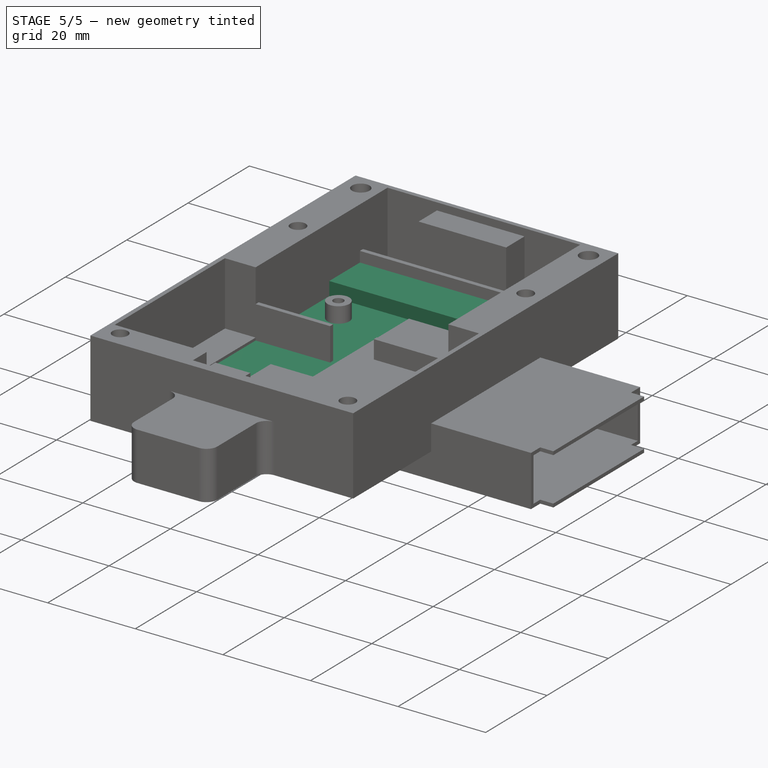
[diagram: stage 5 of 5 — iso view after this stage's code; geometry added in this stage tinted green]
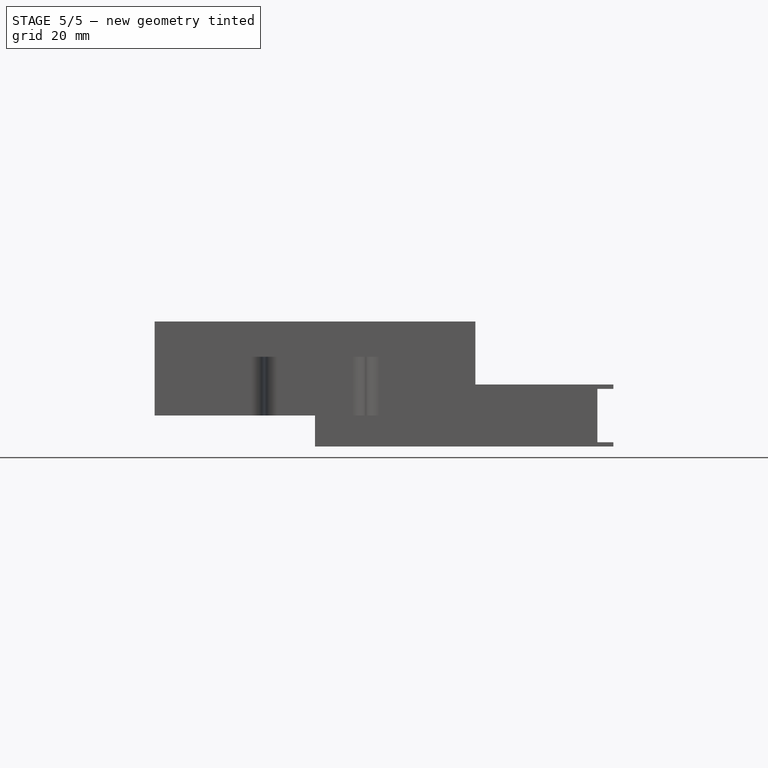
[diagram: stage 5 of 5 — front view after this stage's code; geometry added in this stage tinted green]
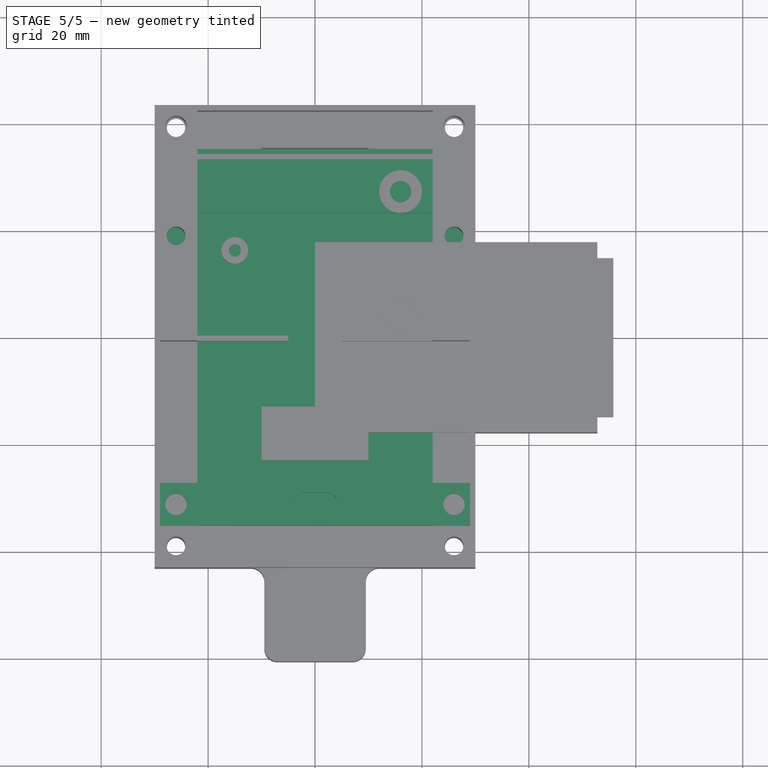
[diagram: stage 5 of 5 — top view after this stage's code; geometry added in this stage tinted green]
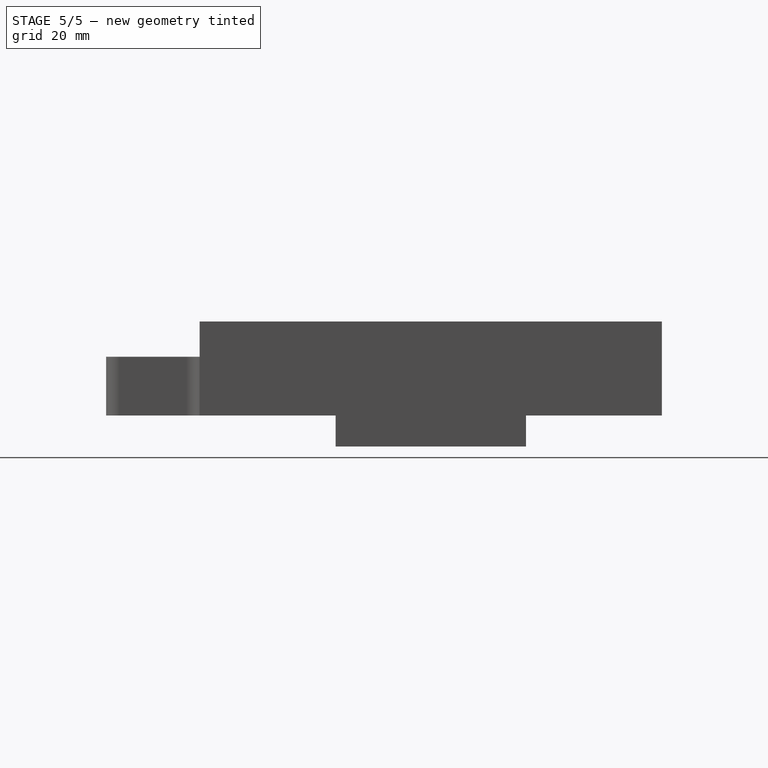
[diagram: stage 5 of 5 — right view after this stage's code; geometry added in this stage tinted green]
FEATURE [Sketcher::SketchObject] Sketch007  label="SolarPanelBaseSketch"
  FullyConstrained = true
  MapMode = 5
  Support = -> [XY_Plane002]
  expr: Constraints[10] = <<sheet>>.SolarPanelWidth
  expr: Constraints[11] = <<sheet>>.SolarPanelLength
  sketch-geometry (5):
    g0: LineSegment StartX=-27.75 StartY=-35.25 StartZ=0 EndX=-27.75 EndY=35.25 EndZ=0
    g1: LineSegment StartX=-27.75 StartY=35.25 StartZ=0 EndX=27.75 EndY=35.25 EndZ=0
    g2: LineSegment StartX=27.75 StartY=35.25 StartZ=0 EndX=27.75 EndY=-35.25 EndZ=0
    g3: LineSegment StartX=27.75 StartY=-35.25 StartZ=0 EndX=-27.75 EndY=-35.25 EndZ=0
    g4: GeomPoint X=0 Y=0 Z=0
  constraints (12):
    c: Coincident(g0,g1)
    c: Coincident(g1,g2)
    c: Coincident(g2,g3)
    c: Coincident(g3,g0)
    c: Horizontal(g1)
    c: Horizontal(g3)
    c: Vertical(g0)
    c: Vertical(g2)
    c: Symmetric(g1,g0,g4)
    c: Coincident(g4,g-1)
    c: DistanceX(g1,g1) = 55.5
    c: DistanceY(g2,g2) = 70.5
FEATURE [PartDesign::Pad] Pad005  label="SolarPanelBase"
  Direction = (0,0,1)
  Length = 2.5
  Length2 = 10
  Profile = -> Sketch007
  ReferenceAxis = -> Sketch007 [N_Axis]
  Type = 0
  expr: Length = <<sheet>>.SolarPanelHeight
FEATURE [Sketcher::SketchObject] Sketch011  label="SPHBaseSketch"
  FullyConstrained = true
  MapMode = 5
  Support = -> [XY_Plane003]
  expr: Constraints[10] = <<sheet>>.BoxWidth
  expr: Constraints[11] = <<sheet>>.SolarPanelLength
  sketch-geometry (5):
    g0: LineSegment StartX=-30 StartY=-35.25 StartZ=0 EndX=-30 EndY=35.25 EndZ=0
    g1: LineSegment StartX=-30 StartY=35.25 StartZ=0 EndX=30 EndY=35.25 EndZ=0
    g2: LineSegment StartX=30 StartY=35.25 StartZ=0 EndX=30 EndY=-35.25 EndZ=0
    g3: LineSegment StartX=30 StartY=-35.25 StartZ=0 EndX=-30 EndY=-35.25 EndZ=0
    g4: GeomPoint X=0 Y=0 Z=0
  constraints (12):
    c: Coincident(g0,g1)
    c: Coincident(g1,g2)
    c: Coincident(g2,g3)
    c: Coincident(g3,g0)
    c: Horizontal(g1)
    c: Horizontal(g3)
    c: Vertical(g0)
    c: Vertical(g2)
    c: Symmetric(g1,g0,g4)
    c: Coincident(g4,g-1)
    c: DistanceX(g1,g1) = 60
    c: DistanceY(g2,g2) = 70.5
FEATURE [PartDesign::Pad] Pad009  label="SPHBase"
  Direction = (0,0,1)
  Length = 2.5
  Length2 = 10
  Profile = -> Sketch011
  ReferenceAxis = -> Sketch011 [N_Axis]
  Type = 0
  expr: Length = <<sheet>>.SPHThickness
FEATURE [Sketcher::SketchObject] Sketch012  label="SPHOffsetSketch"
  ExternalGeometry = -> [Sketch011]
  FullyConstrained = true
  MapMode = 5
  Support = -> [XY_Plane003]
  expr: Constraints[10] = <<sheet>>.StrapHolderDia
  expr: Constraints[21] = <<sheet>>.StrapWidth * 1.01
  sketch-geometry (8):
    g0: LineSegment StartX=-30 StartY=-35.25 StartZ=0 EndX=30 EndY=-35.25 EndZ=0
    g1: LineSegment StartX=30 StartY=-35.25 StartZ=0 EndX=30 EndY=-27.25 EndZ=0
    g2: LineSegment StartX=30 StartY=-27.25 StartZ=0 EndX=-30 EndY=-27.25 EndZ=0
    g3: LineSegment StartX=-30 StartY=-27.25 StartZ=0 EndX=-30 EndY=-35.25 EndZ=0
    g4: LineSegment StartX=-30 StartY=35.25 StartZ=0 EndX=30 EndY=35.25 EndZ=0
    g5: LineSegment StartX=30 StartY=35.25 StartZ=0 EndX=30 EndY=23.25 EndZ=0
    g6: LineSegment StartX=30 StartY=23.25 StartZ=0 EndX=-30 EndY=23.25 EndZ=0
    g7: LineSegment StartX=-30 StartY=23.25 StartZ=0 EndX=-30 EndY=35.25 EndZ=0
  constraints (22):
    c: Coincident(g0,g1)
    c: Coincident(g1,g2)
    c: Coincident(g2,g3)
    c: Coincident(g3,g0)
    c: Horizontal(g0)
    c: Horizontal(g2)
    c: Vertical(g1)
    c: Vertical(g3)
    c: Coincident(g0,g-6)
    c: PointOnObject(g1,g-5)
    c: DistanceY(g1,g1) = 8
    c: Coincident(g4,g5)
    c: Coincident(g5,g6)
    c: Coincident(g6,g7)
    c: Coincident(g7,g4)
    c: Horizontal(g4)
    c: Horizontal(g6)
    c: Vertical(g5)
    c: Vertical(g7)
    c: Coincident(g4,g-6)
    c: PointOnObject(g5,g-5)
    c: DistanceY(g2,g6) = 50.5
FEATURE [PartDesign::Pad] Pad010  label="SPHOffset"
  BaseFeature = -> Pad009
  Direction = (0,0,1)
  Length = 5.6
  Length2 = 10
  Profile = -> Sketch012
  ReferenceAxis = -> Sketch012 [N_Axis]
  Type = 0
  expr: Length = <<sheet>>.InsertHeight
FEATURE [Sketcher::SketchObject] Sketch013  label="SPHInsertHoleSketch"
  ExternalGeometry = -> [Sketch011]
  FullyConstrained = true
  MapMode = 5
  Support = -> [XY_Plane003]
  expr: Constraints[11] = <<sheet>>.HoleDiaInsert
  expr: Constraints[18] = <<sheet>>.LidWireHoleLength
  expr: Constraints[19] = <<sheet>>.LidWireHoleWidth
  expr: Constraints[4] = <<sheet>>.BoxWallThicknessSides / 2
  expr: Constraints[5] = <<sheet>>.BoxWallThicknessSides / 2
  expr: Constraints[6] = <<sheet>>.StrapHoleDistance
  expr: Constraints[7] = <<sheet>>.BoxWallThicknessSides / 2
  sketch-geometry (8):
    g0: Circle CenterX=-26 CenterY=-31.25 CenterZ=0 NormalX=0 NormalY=0 NormalZ=1 AngleXU=0 Radius=2
    g1: Circle CenterX=-26 CenterY=26.75 CenterZ=0 NormalX=0 NormalY=0 NormalZ=1 AngleXU=0 Radius=2
    g2: Circle CenterX=26 CenterY=26.75 CenterZ=0 NormalX=0 NormalY=0 NormalZ=1 AngleXU=0 Radius=2
    g3: Circle CenterX=26 CenterY=-31.25 CenterZ=0 NormalX=0 NormalY=0 NormalZ=1 AngleXU=0 Radius=2
    g4: ArcOfCircle CenterX=-2 CenterY=-31.25 CenterZ=0 NormalX=0 NormalY=0 NormalZ=1 AngleXU=0 Radius=2.25 StartAngle=1.5708 EndAngle=4.71239
    g5: ArcOfCircle CenterX=2 CenterY=-31.25 CenterZ=0 NormalX=0 NormalY=0 NormalZ=1 AngleXU=0 Radius=2.25 StartAngle=4.71239 EndAngle=7.85398
    g6: LineSegment StartX=-2 StartY=-33.5 StartZ=0 EndX=2 EndY=-33.5 EndZ=0
    g7: LineSegment StartX=2 StartY=-29 StartZ=0 EndX=-2 EndY=-29 EndZ=0
  constraints (21):
    c: Horizontal(g1,g2)
    c: Horizontal(g0,g3)
    c: Vertical(g1,g0)
    c: Vertical(g2,g3)
    c: DistanceX(g3,g-4) = 4
    c: DistanceX(g-3,g0) = 4
    c: Distance(g3,g2) = 58
    c: DistanceY(g-4,g3) = 4
    c: Equal(g1,g2)
    c: Equal(g1,g3)
    c: Equal(g1,g0)
    c: Diameter(g1) = 4
    c: Tangent(g4,g6) = -1.5708
    c: Tangent(g6,g5) = -1.5708
    c: Tangent(g5,g7) = -1.5708
    c: Tangent(g7,g4) = -1.5708
    c: Equal(g4,g5)
    c: Symmetric(g5,g4,g-2)
    c: DistanceX(g4,g5) = 4
    c: DistanceY(g5,g5) = 4.5
    c: Horizontal(g5,g3)
FEATURE [PartDesign::Pocket] Pocket002  label="SPHInsertHole"
  BaseFeature = -> Pad010
  Direction = (0,0,-1)
  Length = 5.6
  Length2 = 5
  Profile = -> Sketch013
  ReferenceAxis = -> Sketch013 [N_Axis]
  Reversed = true
  Type = 0
  expr: Length = <<sheet>>.InsertHeight
FEATURE [Sketcher::SketchObject] Sketch014  label="SPHPanelWireSpaceSketch"
  FullyConstrained = true
  MapMode = 5
  Support = -> [XY_Plane003]
  sketch-geometry (4):
    g0: ArcOfCircle CenterX=0 CenterY=7.5 CenterZ=0 NormalX=0 NormalY=0 NormalZ=1 AngleXU=0 Radius=5 StartAngle=0 EndAngle=3.14159
    g1: ArcOfCircle CenterX=0 CenterY=-25 CenterZ=0 NormalX=0 NormalY=0 NormalZ=1 AngleXU=0 Radius=5 StartAngle=3.14159 EndAngle=6.28319
    g2: LineSegment StartX=-5 StartY=7.5 StartZ=0 EndX=-5 EndY=-25 EndZ=0
    g3: LineSegment StartX=5 StartY=-25 StartZ=0 EndX=5 EndY=7.5 EndZ=0
  constraints (10):
    c: Tangent(g0,g2) = -1.5708
    c: Tangent(g2,g1) = -1.5708
    c: Tangent(g1,g3) = -1.5708
    c: Tangent(g3,g0) = -1.5708
    c: Equal(g0,g1)
    c: PointOnObject(g0,g-2)
    c: PointOnObject(g1,g-2)
    c: DistanceX(g0,g0) = 10
    c: Distance(g-1,g0) = 7.5
    c: Distance(g-1,g1) = 25
FEATURE [PartDesign::Pocket] Pocket003  label="SPHPanelWireSpace"
  BaseFeature = -> Pocket002
  Direction = (0,0,-1)
  Length = 2
  Length2 = 5
  Profile = -> Sketch014
  ReferenceAxis = -> Sketch014 [N_Axis]
  Refine = true
  Reversed = true
  Type = 0
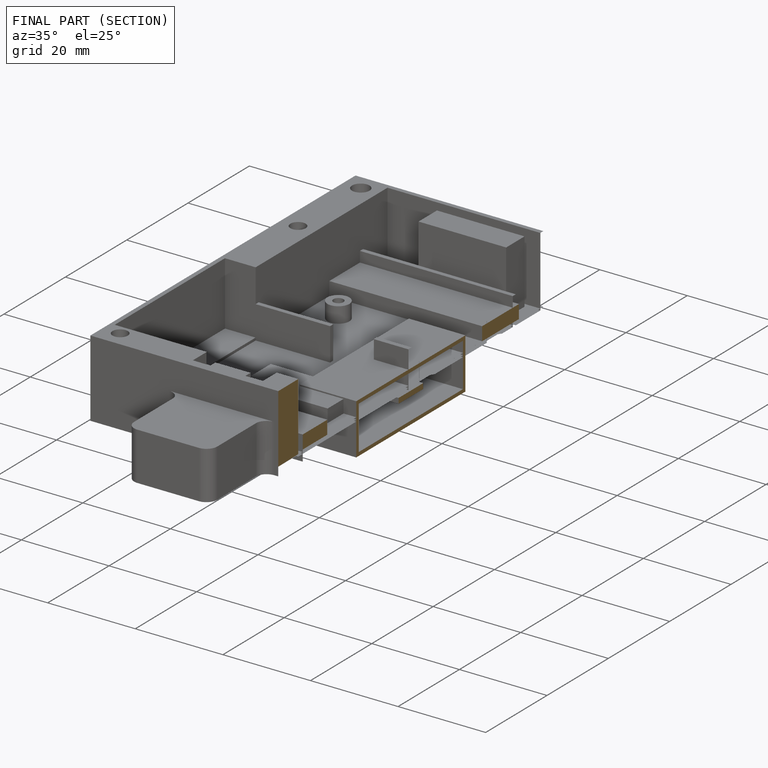
[diagram: finished part — half-section view (interior)]
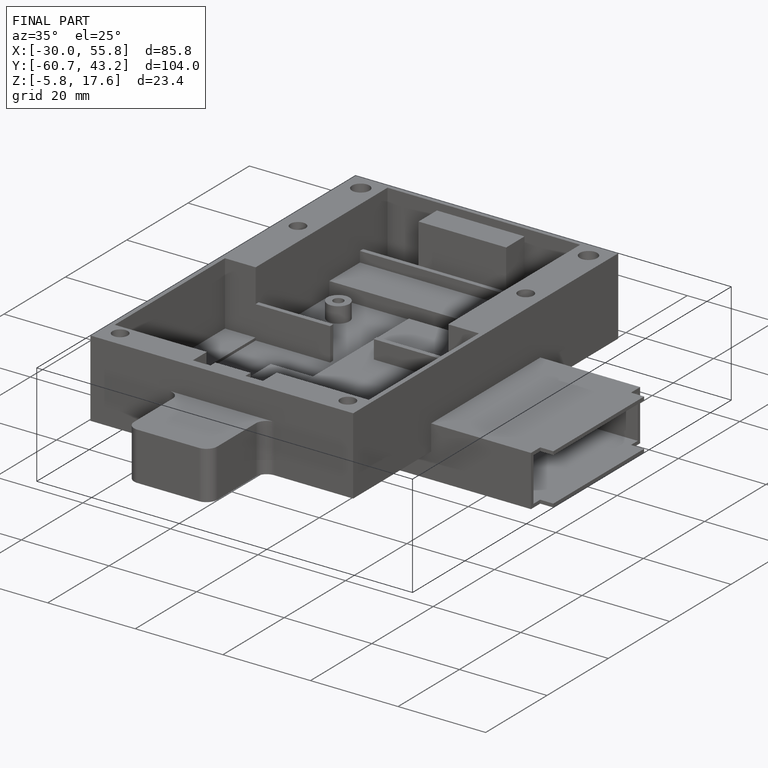
[diagram: finished part — iso view with bounding-box wireframe]
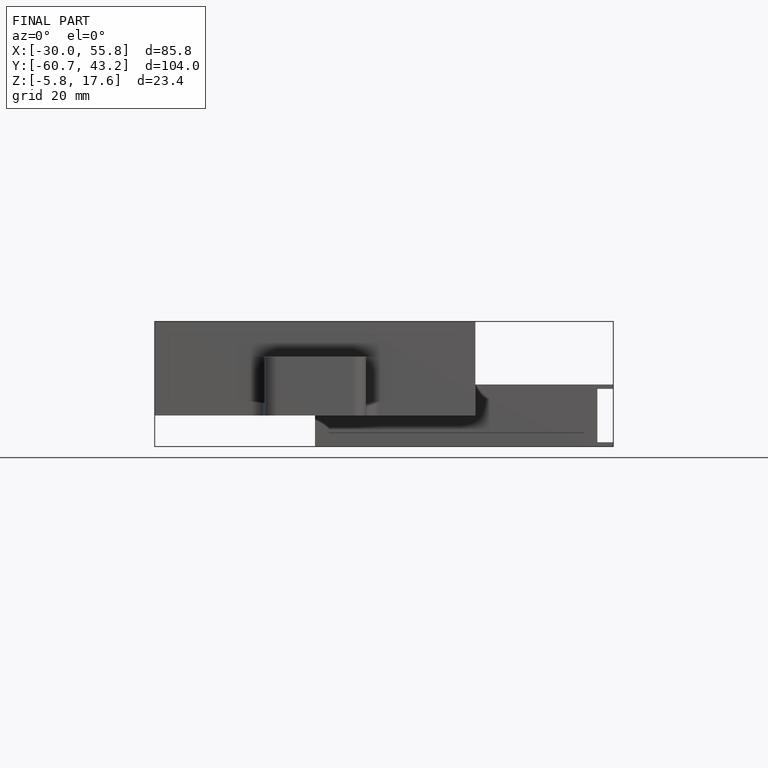
[diagram: finished part — front view with bounding-box wireframe]
